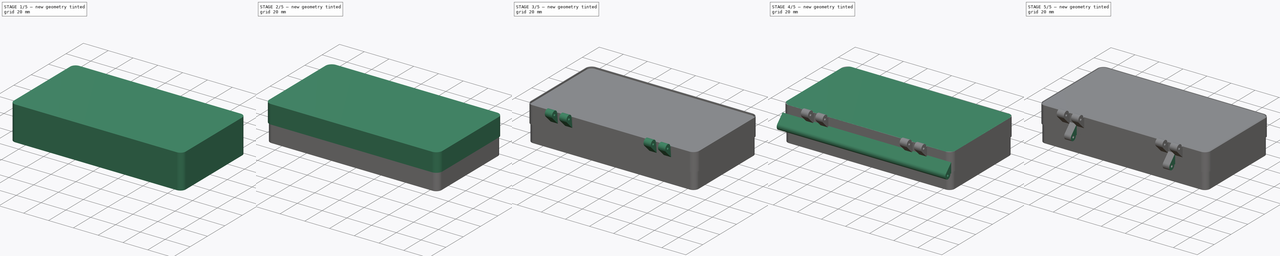
[diagram: build sequence overview — one tinted view per stage of 5, left to right]
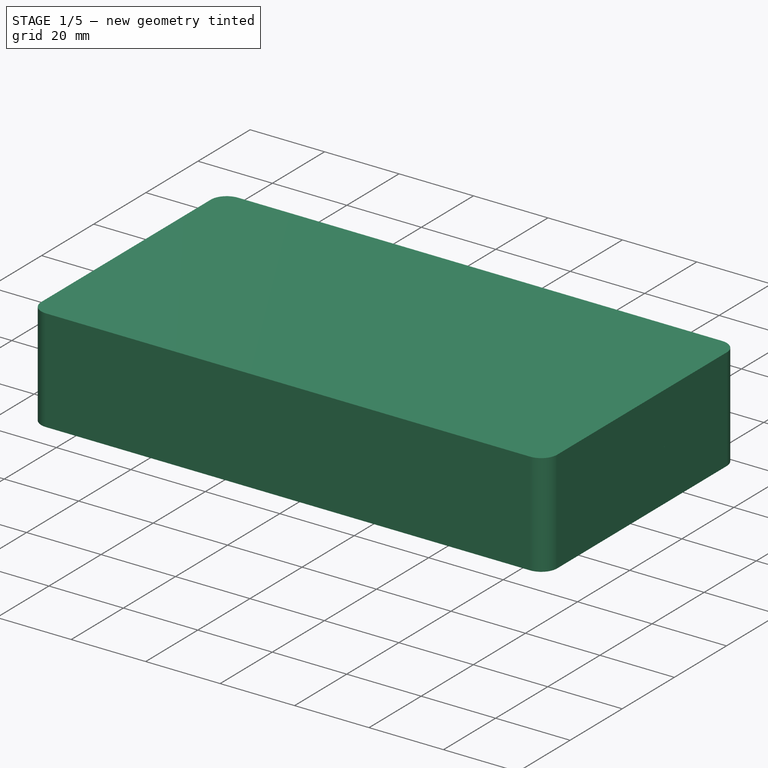
[diagram: stage 1 of 5 — iso view after this stage's code; geometry added in this stage tinted green]
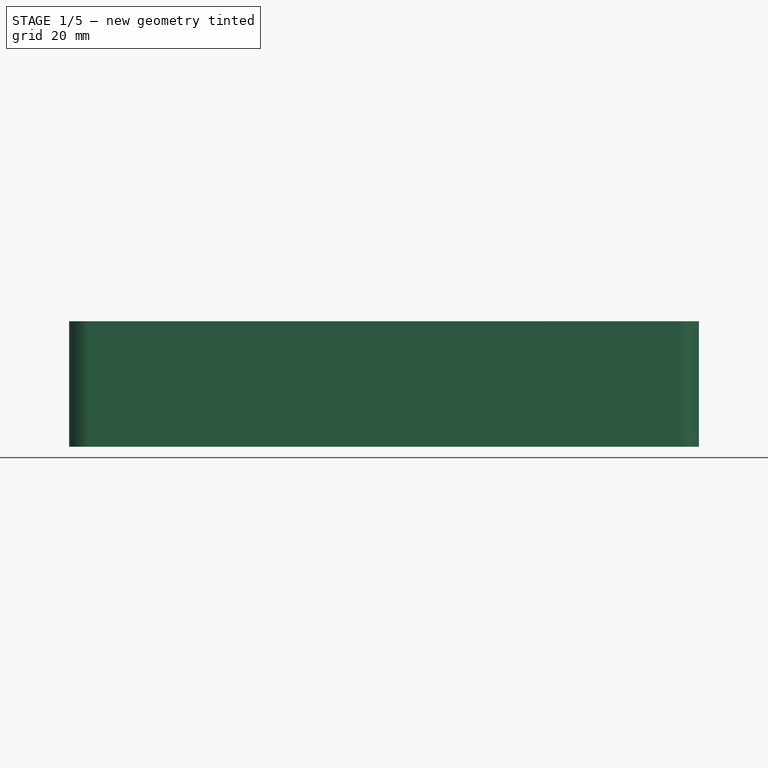
[diagram: stage 1 of 5 — front view after this stage's code; geometry added in this stage tinted green]
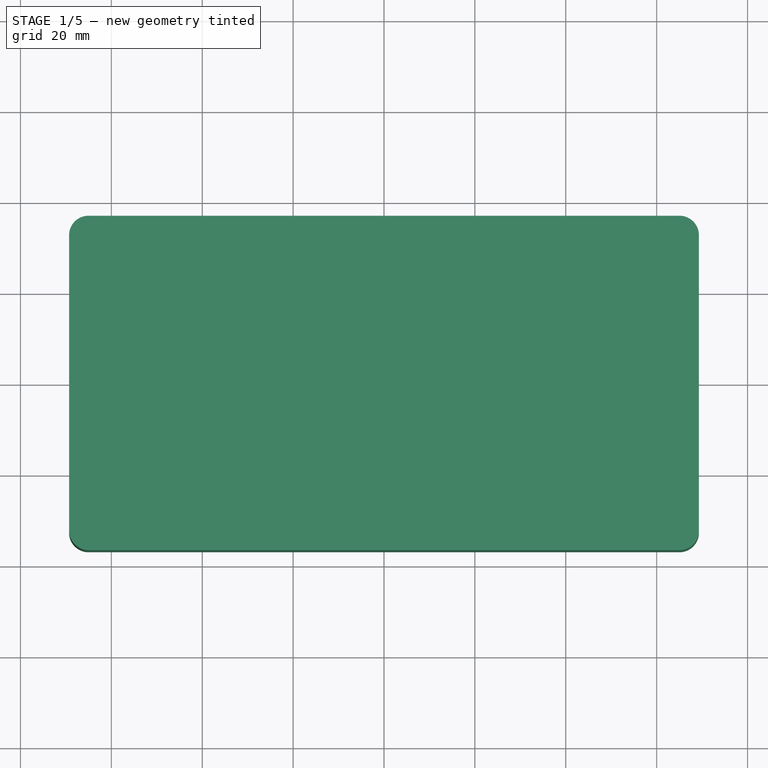
[diagram: stage 1 of 5 — top view after this stage's code; geometry added in this stage tinted green]
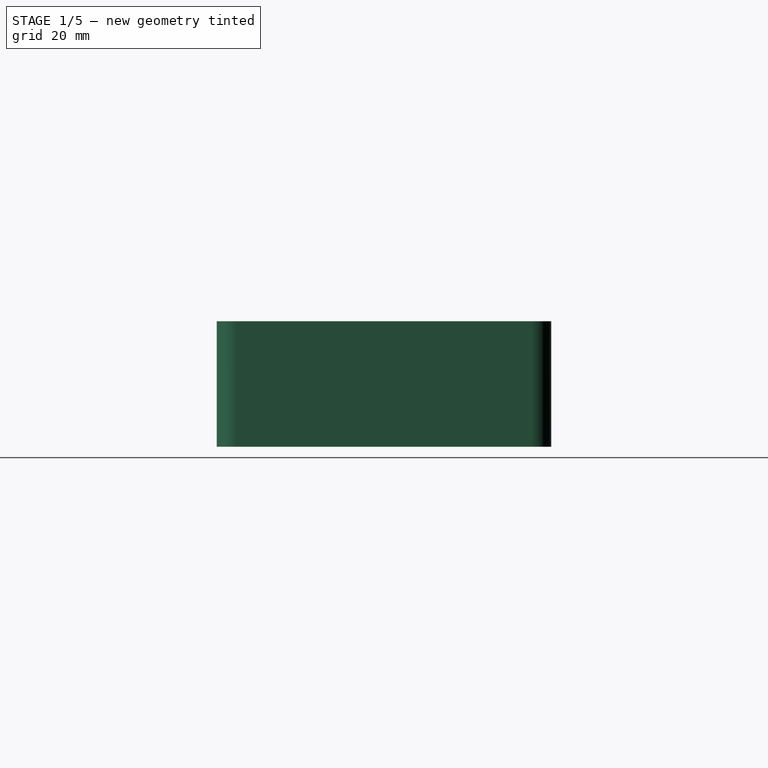
[diagram: stage 1 of 5 — right view after this stage's code; geometry added in this stage tinted green]
FCSTD DOCUMENT  (FreeCAD 1.0R39109 (Git))
Label: case
License: All rights reserved
LicenseURL: https://en.wikipedia.org/wiki/All_rights_reserved
objects: Sketcher::SketchObject×20, PartDesign::Pad×10, PartDesign::Pocket×10, PartDesign::Body×6, App::Part×6, PartDesign::Chamfer×2, Spreadsheet::Sheet×1
note: 112 computed .brp shape members not serialized (recipe doc carries the construction recipe); baked Part::Feature solids carry a one-line shape summary decoded from their .brp

FEATURE [PartDesign::Body] Body003
  AllowCompound = false
  Group = -> [Sketch014,Pad007,Sketch016,Pocket008]
  Origin = -> Origin007
  Tip = -> Pocket008
FEATURE [App::Part] Part003  label="Top insert example"
  Group = -> [Body003]
  Origin = -> Origin006
  Placement = pos=(0,0,-24) rot=(0,0,1;0rad)
FEATURE [Sketcher::SketchObject] Sketch017
  ArcFitTolerance = 1e-06
  AttachmentSupport = -> [XY_Plane009]
  FullyConstrained = true
  MakeInternals = false
  MapMode = 5
  expr: Constraints[20] = Spreadsheet.outside_length - 2 * Spreadsheet.inside_border - 2 * Spreadsheet.insert_margin
  expr: Constraints[21] = Spreadsheet.insert_radius
  expr: Constraints[22] = Spreadsheet.outside_width - 2 * Spreadsheet.inside_border - 2 * Spreadsheet.insert_margin
  sketch-geometry (10):
    g0: LineSegment StartX=-69.3 StartY=32.5 StartZ=0 EndX=-69.3 EndY=-32.5 EndZ=0
    g1: LineSegment StartX=-65 StartY=-36.8 StartZ=0 EndX=65 EndY=-36.8 EndZ=0
    g2: LineSegment StartX=69.3 StartY=-32.5 StartZ=0 EndX=69.3 EndY=32.5 EndZ=0
    g3: LineSegment StartX=65 StartY=36.8 StartZ=0 EndX=-65 EndY=36.8 EndZ=0
    g4: ArcOfCircle CenterX=-65 CenterY=32.5 CenterZ=0 NormalX=0 NormalY=0 NormalZ=1 AngleXU=0 Radius=4.3 StartAngle=1.5708 EndAngle=3.14159
    g5: ArcOfCircle CenterX=-65 CenterY=-32.5 CenterZ=0 NormalX=0 NormalY=0 NormalZ=1 AngleXU=0 Radius=4.3 StartAngle=3.14159 EndAngle=4.71239
    g6: ArcOfCircle CenterX=65 CenterY=-32.5 CenterZ=0 NormalX=0 NormalY=0 NormalZ=1 AngleXU=0 Radius=4.3 StartAngle=4.71239 EndAngle=6.28319
    g7: ArcOfCircle CenterX=65 CenterY=32.5 CenterZ=0 NormalX=0 NormalY=0 NormalZ=1 AngleXU=0 Radius=4.3 StartAngle=2.9901e-11 EndAngle=1.5708
    g8: GeomPoint [constr] X=-69.3 Y=36.8 Z=0
    g9: GeomPoint [constr] X=69.3 Y=-36.8 Z=0
  constraints (23):
    c: Tangent(g0,g4) = -1.5708
    c: Tangent(g0,g5) = -1.5708
    c: Tangent(g1,g5) = -1.5708
    c: Tangent(g1,g6) = -1.5708
    c: Tangent(g2,g6) = -1.5708
    c: Tangent(g2,g7) = -1.5708
    c: Tangent(g3,g7) = -1.5708
    c: Tangent(g3,g4) = -1.5708
    c: Vertical(g0)
    c: Vertical(g2)
    c: Horizontal(g1)
    c: Horizontal(g3)
    c: Equal(g4,g5)
    c: Equal(g5,g6)
    c: Equal(g6,g7)
    c: PointOnObject(g8,g0)
    c: PointOnObject(g8,g3)
    c: PointOnObject(g9,g1)
    c: PointOnObject(g9,g2)
    c: Symmetric(g8,g9,g-1)
    c: DistanceX(g0,g2) = 138.6
    c: Radius(g4) = 4.3
    c: DistanceY(g1,g3) = 73.6
FEATURE [PartDesign::Pad] Pad008
  Direction = (0,0,1)
  Length = 13.8
  Length2 = 10
  Profile = -> Sketch017
  ReferenceAxis = -> Sketch017 [N_Axis]
  Refine = true
  Reversed = true
  Suppressed = false
  Type = 0
  expr: Length = Spreadsheet.bottom_insert_height
FEATURE [Sketcher::SketchObject] Sketch018
  ArcFitTolerance = 1e-06
  AttachmentSupport = -> [Pad008]
  ExternalGeometry = -> [Pad008]
  FullyConstrained = false
  MakeInternals = false
  MapMode = 5
  sketch-geometry (31):
    g0: LineSegment StartX=-65 StartY=-6 StartZ=0 EndX=-65 EndY=-32 EndZ=0
    g1: LineSegment StartX=-63 StartY=-34 StartZ=0 EndX=63 EndY=-34 EndZ=0
    g2: LineSegment StartX=65 StartY=-32 StartZ=0 EndX=65 EndY=-6 EndZ=0
    g3: LineSegment StartX=63 StartY=-4 StartZ=0 EndX=-63 EndY=-4 EndZ=0
    g4: ArcOfCircle CenterX=-63 CenterY=-6 CenterZ=0 NormalX=0 NormalY=0 NormalZ=1 AngleXU=0 Radius=2 StartAngle=1.5708 EndAngle=3.14159
    g5: ArcOfCircle CenterX=-63 CenterY=-32 CenterZ=0 NormalX=0 NormalY=0 NormalZ=1 AngleXU=0 Radius=2 StartAngle=3.14159 EndAngle=4.71239
    g6: ArcOfCircle CenterX=63 CenterY=-32 CenterZ=0 NormalX=0 NormalY=0 NormalZ=1 AngleXU=0 Radius=2 StartAngle=4.71239 EndAngle=6.28319
    g7: ArcOfCircle CenterX=63 CenterY=-6 CenterZ=0 NormalX=0 NormalY=0 NormalZ=1 AngleXU=0 Radius=2 StartAngle=0 EndAngle=1.5708
    g8: GeomPoint [constr] X=-65 Y=-4 Z=0
    g9: GeomPoint [constr] X=65 Y=-34 Z=0
    g10: LineSegment StartX=-64.5 StartY=-1 StartZ=0 EndX=-13.5 EndY=-1 EndZ=0
    g11: LineSegment StartX=-11.5 StartY=1 StartZ=0 EndX=-11.5 EndY=32 EndZ=0
    g12: LineSegment StartX=-13.5 StartY=34 StartZ=0 EndX=-64.5 EndY=34 EndZ=0
    g13: ArcOfCircle CenterX=-64.5 CenterY=32 CenterZ=0 NormalX=0 NormalY=0 NormalZ=1 AngleXU=0 Radius=2 StartAngle=1.5708 EndAngle=3.14159
    g14: ArcOfCircle CenterX=-64.5 CenterY=1 CenterZ=0 NormalX=0 NormalY=0 NormalZ=1 AngleXU=0 Radius=2 StartAngle=3.14159 EndAngle=4.71239
    g15: ArcOfCircle CenterX=-13.5 CenterY=1 CenterZ=0 NormalX=0 NormalY=0 NormalZ=1 AngleXU=0 Radius=2 StartAngle=4.71239 EndAngle=6.28319
    g16: ArcOfCircle CenterX=-13.5 CenterY=32 CenterZ=0 NormalX=0 NormalY=0 NormalZ=1 AngleXU=0 Radius=2 StartAngle=-9e-16 EndAngle=1.5708
    g17: GeomPoint [constr] X=0 Y=0 Z=0
    g18: LineSegment StartX=-66.5 StartY=32 StartZ=0 EndX=-66.5 EndY=1 EndZ=0
    g19: LineSegment StartX=-8.5 StartY=32 StartZ=0 EndX=-8.5 EndY=1 EndZ=0
    g20: LineSegment StartX=-6.5 StartY=-1 StartZ=0 EndX=64.5 EndY=-1 EndZ=0
    g21: LineSegment StartX=66.5 StartY=1 StartZ=0 EndX=66.5 EndY=32 EndZ=0
    g22: LineSegment StartX=64.5 StartY=34 StartZ=0 EndX=-6.5 EndY=34 EndZ=0
    g23: ArcOfCircle CenterX=-6.5 CenterY=32 CenterZ=0 NormalX=0 NormalY=0 NormalZ=1 AngleXU=0 Radius=2 StartAngle=1.5708 EndAngle=3.14159
    g24: ArcOfCircle CenterX=-6.5 CenterY=1 CenterZ=0 NormalX=0 NormalY=0 NormalZ=1 AngleXU=0 Radius=2 StartAngle=3.14159 EndAngle=4.71239
    g25: ArcOfCircle CenterX=64.5 CenterY=1 CenterZ=0 NormalX=0 NormalY=0 NormalZ=1 AngleXU=0 Radius=2 StartAngle=4.71239 EndAngle=6.28319
    g26: ArcOfCircle CenterX=64.5 CenterY=32 CenterZ=0 NormalX=0 NormalY=0 NormalZ=1 AngleXU=0 Radius=2 StartAngle=9e-16 EndAngle=1.5708
    g27: GeomPoint [constr] X=-8.5 Y=34 Z=0
    g28: GeomPoint [constr] X=66.5 Y=0 Z=0
    g29: LineSegment [constr] StartX=20 StartY=34 StartZ=0 EndX=20 EndY=0 EndZ=0
    g30: LineSegment [constr] StartX=20 StartY=0 StartZ=0 EndX=20 EndY=-34 EndZ=0
  constraints (72):
    c: Tangent(g0,g4) = -1.5708
    c: Tangent(g0,g5) = -1.5708
    c: Tangent(g1,g5) = -1.5708
    c: Tangent(g1,g6) = -1.5708
    c: Tangent(g2,g6) = -1.5708
    c: Tangent(g2,g7) = -1.5708
    c: Tangent(g3,g7) = -1.5708
    c: Tangent(g3,g4) = -1.5708
    c: Vertical(g0)
    c: Vertical(g2)
    c: Horizontal(g1)
    c: Horizontal(g3)
    c: Equal(g4,g5)
    c: Equal(g5,g6)
    c: PointOnObject(g8,g0)
    c: PointOnObject(g8,g3)
    c: PointOnObject(g9,g1)
    c: PointOnObject(g9,g2)
    c: Radius(g4) = 2
    c: Tangent(g10,g14) = -1.5708
    c: Tangent(g10,g15) = -1.5708
    c: Tangent(g11,g15) = -1.5708
    c: Tangent(g11,g16) = -1.5708
    c: Tangent(g12,g16) = -1.5708
    c: Tangent(g12,g13) = -1.5708
    c: Vertical(g11)
    c: Horizontal(g10)
    c: Horizontal(g12)
    c: Equal(g13,g14)
    c: Equal(g14,g15)
    c: Equal(g15,g16)
    c: Radius(g14) = 2
    c: Coincident(g17,g-1)
    c: Tangent(g18,g13) = -1.5708
    c: Vertical(g18)
    c: DistanceX(g13,g11) = 55
    c: DistanceY(g10,g12) = 35
    c: Tangent(g19,g23) = -1.5708
    c: Tangent(g19,g24) = -1.5708
    c: Tangent(g20,g24) = -1.5708
    c: Tangent(g20,g25) = -1.5708
    c: Tangent(g21,g25) = -1.5708
    c: Tangent(g21,g26) = -1.5708
    c: Tangent(g22,g26) = -1.5708
    c: Tangent(g22,g23) = -1.5708
    c: Vertical(g19)
    c: Vertical(g21)
    c: Horizontal(g20)
    c: Horizontal(g22)
    c: Equal(g23,g24)
    c: Equal(g24,g25)
    c: Equal(g25,g26)
    c: PointOnObject(g27,g19)
    c: PointOnObject(g27,g22)
    c: Radius(g24) = 2
    c: DistanceX(g19,g21) = 75
    c: DistanceX(g0,g2) = 130
    c: DistanceY(g1,g3) = 30
    c: Tangent(g18,g14) = -1.5708
    c: Distance(g11,g19) = 3
    c: Symmetric(g13,g21,g-2)
    c: Symmetric(g0,g2,g-2)
    c: Horizontal(g10,g20)
    c: Distance(g20,g3) = 3
    c: PointOnObject(g29,g22)
    c: PointOnObject(g29,g-1)
    c: Vertical(g29)
    c: Coincident(g30,g29)
    c: PointOnObject(g30,g1)
    c: Vertical(g30)
    c: Equal(g30,g29)
    c: DistanceX(g17,g29) = 20
FEATURE [PartDesign::Pocket] Pocket009
  BaseFeature = -> Pad008
  Direction = (0,0,-1)
  Length = 11.8
  Length2 = 5
  Profile = -> Sketch018
  ReferenceAxis = -> Sketch018 [N_Axis]
  Refine = true
  Suppressed = false
  Type = 0
  expr: Length = Spreadsheet.bottom_insert_height - 2 mm
FEATURE [PartDesign::Body] Body004
  AllowCompound = false
  Group = -> [Sketch017,Pad008,Sketch018,Pocket009]
  Origin = -> Origin009
  Tip = -> Pocket009
FEATURE [App::Part] Part004  label="Bottom insert Ma Ant D1"
  Group = -> [Body004]
  Origin = -> Origin008
  Placement = pos=(0,0,-34) rot=(0,0,1;0rad)
FEATURE [Sketcher::SketchObject] Sketch019
  ArcFitTolerance = 1e-06
  AttachmentSupport = -> [XY_Plane011]
  FullyConstrained = true
  MakeInternals = false
  MapMode = 5
  expr: Constraints[20] = Spreadsheet.outside_length - 2 * Spreadsheet.inside_border - 2 * Spreadsheet.insert_margin
  expr: Constraints[21] = Spreadsheet.insert_radius
  expr: Constraints[22] = Spreadsheet.outside_width - 2 * Spreadsheet.inside_border - 2 * Spreadsheet.insert_margin
  sketch-geometry (10):
    g0: LineSegment StartX=-69.3 StartY=32.5 StartZ=0 EndX=-69.3 EndY=-32.5 EndZ=0
    g1: LineSegment StartX=-65 StartY=-36.8 StartZ=0 EndX=65 EndY=-36.8 EndZ=0
    g2: LineSegment StartX=69.3 StartY=-32.5 StartZ=0 EndX=69.3 EndY=32.5 EndZ=0
    g3: LineSegment StartX=65 StartY=36.8 StartZ=0 EndX=-65 EndY=36.8 EndZ=0
    g4: ArcOfCircle CenterX=-65 CenterY=32.5 CenterZ=0 NormalX=0 NormalY=0 NormalZ=1 AngleXU=0 Radius=4.3 StartAngle=1.5708 EndAngle=3.14159
    g5: ArcOfCircle CenterX=-65 CenterY=-32.5 CenterZ=0 NormalX=0 NormalY=0 NormalZ=1 AngleXU=0 Radius=4.3 StartAngle=3.14159 EndAngle=4.71239
    g6: ArcOfCircle CenterX=65 CenterY=-32.5 CenterZ=0 NormalX=0 NormalY=0 NormalZ=1 AngleXU=0 Radius=4.3 StartAngle=4.71239 EndAngle=6.28319
    g7: ArcOfCircle CenterX=65 CenterY=32.5 CenterZ=0 NormalX=0 NormalY=0 NormalZ=1 AngleXU=0 Radius=4.3 StartAngle=2.99007e-11 EndAngle=1.5708
    g8: GeomPoint [constr] X=-69.3 Y=36.8 Z=0
    g9: GeomPoint [constr] X=69.3 Y=-36.8 Z=0
  constraints (23):
    c: Tangent(g0,g4) = -1.5708
    c: Tangent(g0,g5) = -1.5708
    c: Tangent(g1,g5) = -1.5708
    c: Tangent(g1,g6) = -1.5708
    c: Tangent(g2,g6) = -1.5708
    c: Tangent(g2,g7) = -1.5708
    c: Tangent(g3,g7) = -1.5708
    c: Tangent(g3,g4) = -1.5708
    c: Vertical(g0)
    c: Vertical(g2)
    c: Horizontal(g1)
    c: Horizontal(g3)
    c: Equal(g4,g5)
    c: Equal(g5,g6)
    c: Equal(g6,g7)
    c: PointOnObject(g8,g0)
    c: PointOnObject(g8,g3)
    c: PointOnObject(g9,g1)
    c: PointOnObject(g9,g2)
    c: Symmetric(g8,g9,g-1)
    c: DistanceX(g0,g2) = 138.6
    c: Radius(g4) = 4.3
    c: DistanceY(g1,g3) = 73.6
FEATURE [PartDesign::Pad] Pad009
  Direction = (0,0,1)
  Length = 13.8
  Length2 = 10
  Profile = -> Sketch019
  ReferenceAxis = -> Sketch019 [N_Axis]
  Refine = true
  Suppressed = false
  Type = 0
  expr: Length = Spreadsheet.top_insert_height
FEATURE [Sketcher::SketchObject] Sketch020
  ArcFitTolerance = 1e-06
  AttachmentSupport = -> [Pad009]
  FullyConstrained = false
  MakeInternals = false
  MapMode = 5
  Placement = pos=(0,0,0) rot=(1,0,0;3.14159rad)
  sketch-geometry (10):
    g0: LineSegment StartX=-27.7408 StartY=7.75884 StartZ=0 EndX=-27.7408 EndY=-7.75883 EndZ=0
    g1: LineSegment StartX=-22.7408 StartY=-12.7588 StartZ=0 EndX=22.7408 EndY=-12.7588 EndZ=0
    g2: LineSegment StartX=27.7408 StartY=-7.75884 StartZ=0 EndX=27.7408 EndY=7.75884 EndZ=0
    g3: LineSegment StartX=22.7408 StartY=12.7588 StartZ=0 EndX=-22.7408 EndY=12.7588 EndZ=0
    g4: ArcOfCircle CenterX=-22.7408 CenterY=7.75883 CenterZ=0 NormalX=0 NormalY=0 NormalZ=1 AngleXU=0 Radius=5 StartAngle=1.5708 EndAngle=3.14159
    g5: ArcOfCircle CenterX=-22.7408 CenterY=-7.75883 CenterZ=0 NormalX=0 NormalY=0 NormalZ=1 AngleXU=0 Radius=5 StartAngle=3.14159 EndAngle=4.71239
    g6: ArcOfCircle CenterX=22.7408 CenterY=-7.75883 CenterZ=0 NormalX=0 NormalY=0 NormalZ=1 AngleXU=0 Radius=5 StartAngle=4.71239 EndAngle=6.28319
    g7: ArcOfCircle CenterX=22.7408 CenterY=7.75884 CenterZ=0 NormalX=0 NormalY=0 NormalZ=1 AngleXU=0 Radius=5 StartAngle=0 EndAngle=1.5708
    g8: GeomPoint [constr] X=-27.7408 Y=12.7588 Z=0
    g9: GeomPoint [constr] X=27.7408 Y=-12.7588 Z=0
  constraints (21):
    c: Tangent(g0,g4) = -1.5708
    c: Tangent(g0,g5) = -1.5708
    c: Tangent(g1,g5) = -1.5708
    c: Tangent(g1,g6) = -1.5708
    c: Tangent(g2,g6) = -1.5708
    c: Tangent(g2,g7) = -1.5708
    c: Tangent(g3,g7) = -1.5708
    c: Tangent(g3,g4) = -1.5708
    c: Vertical(g0)
    c: Vertical(g2)
    c: Horizontal(g1)
    c: Horizontal(g3)
    c: Equal(g4,g5)
    c: Equal(g5,g6)
    c: Equal(g6,g7)
    c: PointOnObject(g8,g0)
    c: PointOnObject(g8,g3)
    c: PointOnObject(g9,g1)
    c: PointOnObject(g9,g2)
    c: Radius(g5) = 5
    c: Symmetric(g4,g6,g-1)
FEATURE [PartDesign::Pocket] Pocket010
  BaseFeature = -> Pad009
  Direction = (0,0,1)
  Length = 11.8
  Length2 = 5
  Profile = -> Sketch020
  ReferenceAxis = -> Sketch020 [N_Axis]
  Refine = true
  Suppressed = false
  Type = 0
  expr: Length = Spreadsheet.top_insert_height - 2 mm
FEATURE [PartDesign::Body] Body005
  AllowCompound = false
  Group = -> [Sketch019,Pad009,Sketch020,Pocket010]
  Origin = -> Origin011
  Tip = -> Pocket010
FEATURE [App::Part] Part005  label="Top insert Ma Ant D1"
  Group = -> [Body005]
  Origin = -> Origin010
  Placement = pos=(0,0,-24) rot=(0,0,1;0rad)
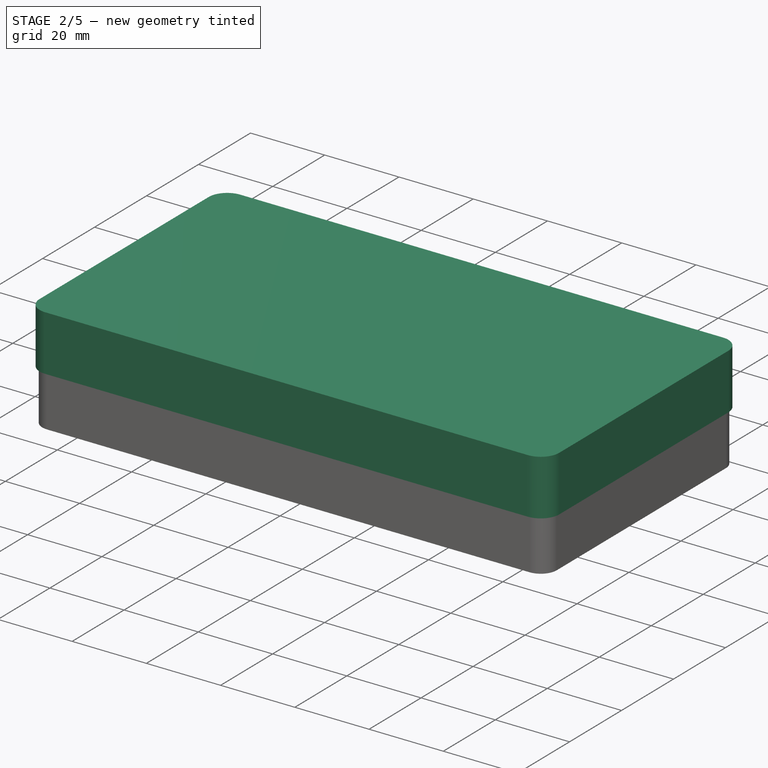
[diagram: stage 2 of 5 — iso view after this stage's code; geometry added in this stage tinted green]
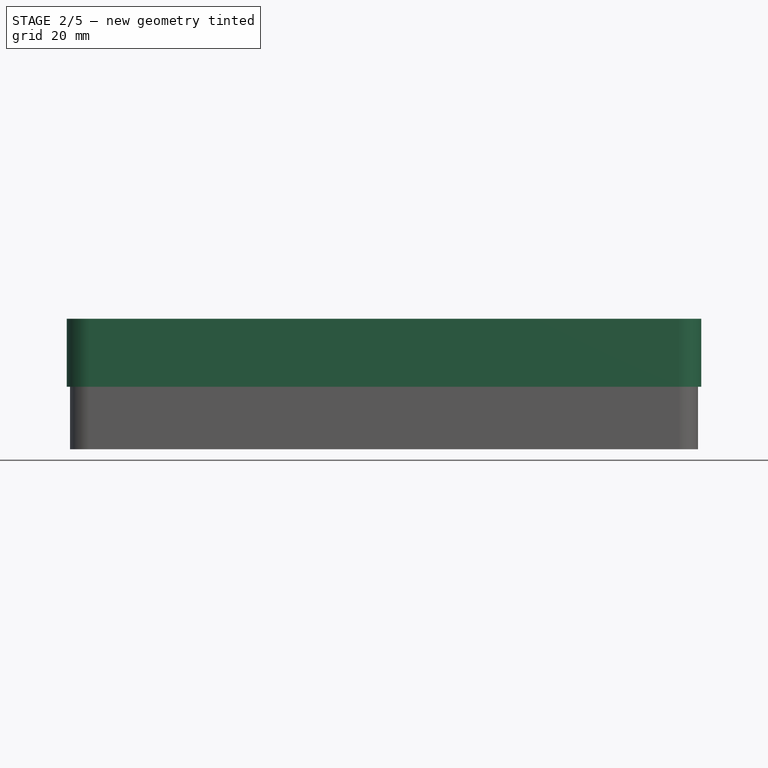
[diagram: stage 2 of 5 — front view after this stage's code; geometry added in this stage tinted green]
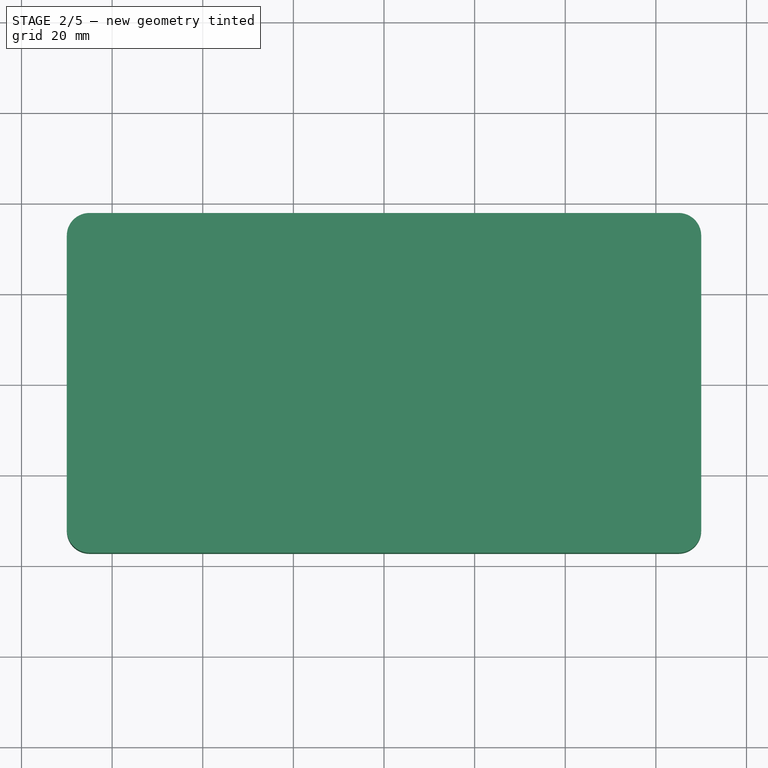
[diagram: stage 2 of 5 — top view after this stage's code; geometry added in this stage tinted green]
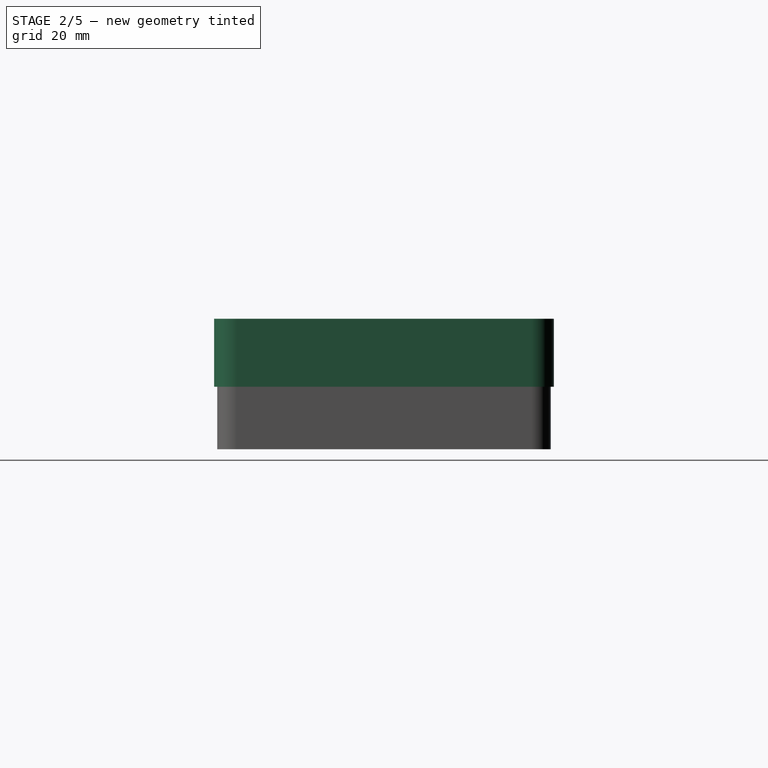
[diagram: stage 2 of 5 — right view after this stage's code; geometry added in this stage tinted green]
FEATURE [Sketcher::SketchObject] Sketch  label="case volume"
  ArcFitTolerance = 1e-06
  AttachmentSupport = -> [XY_Plane001]
  FullyConstrained = true
  MakeInternals = false
  MapMode = 5
  expr: Constraints[19] = Spreadsheet.outside_corner_radius
  expr: Constraints[21] = Spreadsheet.outside_length
  expr: Constraints[22] = Spreadsheet.outside_width
  sketch-geometry (10):
    g0: LineSegment StartX=-70 StartY=32.5 StartZ=0 EndX=-70 EndY=-32.5 EndZ=0
    g1: LineSegment StartX=-65 StartY=-37.5 StartZ=0 EndX=65 EndY=-37.5 EndZ=0
    g2: LineSegment StartX=70 StartY=-32.5 StartZ=0 EndX=70 EndY=32.5 EndZ=0
    g3: LineSegment StartX=65 StartY=37.5 StartZ=0 EndX=-65 EndY=37.5 EndZ=0
    g4: ArcOfCircle CenterX=-65 CenterY=32.5 CenterZ=0 NormalX=0 NormalY=0 NormalZ=1 AngleXU=0 Radius=5 StartAngle=1.5708 EndAngle=3.14159
    g5: ArcOfCircle CenterX=-65 CenterY=-32.5 CenterZ=0 NormalX=0 NormalY=0 NormalZ=1 AngleXU=0 Radius=5 StartAngle=3.14159 EndAngle=4.71239
    g6: ArcOfCircle CenterX=65 CenterY=-32.5 CenterZ=0 NormalX=0 NormalY=0 NormalZ=1 AngleXU=0 Radius=5 StartAngle=4.71239 EndAngle=6.28319
    g7: ArcOfCircle CenterX=65 CenterY=32.5 CenterZ=0 NormalX=0 NormalY=0 NormalZ=1 AngleXU=0 Radius=5 StartAngle=0 EndAngle=1.5708
    g8: GeomPoint [constr] X=-70 Y=37.5 Z=0
    g9: GeomPoint [constr] X=70 Y=-37.5 Z=0
  constraints (23):
    c: Tangent(g0,g4) = -1.5708
    c: Tangent(g0,g5) = -1.5708
    c: Tangent(g1,g5) = -1.5708
    c: Tangent(g1,g6) = -1.5708
    c: Tangent(g2,g6) = -1.5708
    c: Tangent(g2,g7) = -1.5708
    c: Tangent(g3,g7) = -1.5708
    c: Tangent(g3,g4) = -1.5708
    c: Vertical(g0)
    c: Vertical(g2)
    c: Horizontal(g1)
    c: Horizontal(g3)
    c: Equal(g4,g5)
    c: Equal(g5,g6)
    c: Equal(g6,g7)
    c: PointOnObject(g8,g0)
    c: PointOnObject(g8,g3)
    c: PointOnObject(g9,g1)
    c: PointOnObject(g9,g2)
    c: Radius(g5) = 5
    c: Symmetric(g8,g9,g-1)
    c: DistanceX(g8,g2) = 140
    c: DistanceY(g1,g8) = 75
FEATURE [PartDesign::Pad] Pad
  Direction = (0,0,1)
  Length = 15
  Length2 = 10
  Profile = -> Sketch
  ReferenceAxis = -> Sketch [N_Axis]
  Refine = true
  Suppressed = false
  Type = 0
  expr: Length = Spreadsheet.bottom_height
FEATURE [PartDesign::Body] Body
  AllowCompound = false
  Group = -> [Sketch,Pad,Sketch001,Pocket,Sketch002,Pad001,Sketch008,Pocket004,Sketch009,Pad004,Sketch010,Pocket005,Chamfer001]
  Origin = -> Origin001
  Tip = -> Chamfer001
FEATURE [App::Part] Part  label="Bottom shell"
  Group = -> [Body]
  Origin = -> Origin
  Placement = pos=(0,0,-80) rot=(0,0,1;0rad)
FEATURE [Sketcher::SketchObject] Sketch013
  ArcFitTolerance = 1e-06
  AttachmentSupport = -> [XY_Plane005]
  FullyConstrained = true
  MakeInternals = false
  MapMode = 5
  expr: Constraints[20] = Spreadsheet.outside_length - 2 * Spreadsheet.inside_border - 2 * Spreadsheet.insert_margin
  expr: Constraints[21] = Spreadsheet.insert_radius
  expr: Constraints[22] = Spreadsheet.outside_width - 2 * Spreadsheet.inside_border - 2 * Spreadsheet.insert_margin
  sketch-geometry (10):
    g0: LineSegment StartX=-69.3 StartY=32.5 StartZ=0 EndX=-69.3 EndY=-32.5 EndZ=0
    g1: LineSegment StartX=-65 StartY=-36.8 StartZ=0 EndX=65 EndY=-36.8 EndZ=0
    g2: LineSegment StartX=69.3 StartY=-32.5 StartZ=0 EndX=69.3 EndY=32.5 EndZ=0
    g3: LineSegment StartX=65 StartY=36.8 StartZ=0 EndX=-65 EndY=36.8 EndZ=0
    g4: ArcOfCircle CenterX=-65 CenterY=32.5 CenterZ=0 NormalX=0 NormalY=0 NormalZ=1 AngleXU=0 Radius=4.3 StartAngle=1.5708 EndAngle=3.14159
    g5: ArcOfCircle CenterX=-65 CenterY=-32.5 CenterZ=0 NormalX=0 NormalY=0 NormalZ=1 AngleXU=0 Radius=4.3 StartAngle=3.14159 EndAngle=4.71239
    g6: ArcOfCircle CenterX=65 CenterY=-32.5 CenterZ=0 NormalX=0 NormalY=0 NormalZ=1 AngleXU=0 Radius=4.3 StartAngle=4.71239 EndAngle=6.28319
    g7: ArcOfCircle CenterX=65 CenterY=32.5 CenterZ=0 NormalX=0 NormalY=0 NormalZ=1 AngleXU=0 Radius=4.3 StartAngle=2.99006e-11 EndAngle=1.5708
    g8: GeomPoint [constr] X=-69.3 Y=36.8 Z=0
    g9: GeomPoint [constr] X=69.3 Y=-36.8 Z=0
  constraints (23):
    c: Tangent(g0,g4) = -1.5708
    c: Tangent(g0,g5) = -1.5708
    c: Tangent(g1,g5) = -1.5708
    c: Tangent(g1,g6) = -1.5708
    c: Tangent(g2,g6) = -1.5708
    c: Tangent(g2,g7) = -1.5708
    c: Tangent(g3,g7) = -1.5708
    c: Tangent(g3,g4) = -1.5708
    c: Vertical(g0)
    c: Vertical(g2)
    c: Horizontal(g1)
    c: Horizontal(g3)
    c: Equal(g4,g5)
    c: Equal(g5,g6)
    c: Equal(g6,g7)
    c: PointOnObject(g8,g0)
    c: PointOnObject(g8,g3)
    c: PointOnObject(g9,g1)
    c: PointOnObject(g9,g2)
    c: Symmetric(g8,g9,g-1)
    c: DistanceX(g0,g2) = 138.6
    c: Radius(g4) = 4.3
    c: DistanceY(g1,g3) = 73.6
FEATURE [PartDesign::Pad] Pad006
  Direction = (0,0,1)
  Length = 13.8
  Length2 = 10
  Profile = -> Sketch013
  ReferenceAxis = -> Sketch013 [N_Axis]
  Refine = true
  Reversed = true
  Suppressed = false
  Type = 0
  expr: Length = Spreadsheet.bottom_insert_height
FEATURE [Sketcher::SketchObject] Sketch014
  ArcFitTolerance = 1e-06
  AttachmentSupport = -> [XY_Plane007]
  FullyConstrained = true
  MakeInternals = false
  MapMode = 5
  expr: Constraints[20] = Spreadsheet.outside_length - 2 * Spreadsheet.inside_border - 2 * Spreadsheet.insert_margin
  expr: Constraints[21] = Spreadsheet.insert_radius
  expr: Constraints[22] = Spreadsheet.outside_width - 2 * Spreadsheet.inside_border - 2 * Spreadsheet.insert_margin
  sketch-geometry (10):
    g0: LineSegment StartX=-69.3 StartY=32.5 StartZ=0 EndX=-69.3 EndY=-32.5 EndZ=0
    g1: LineSegment StartX=-65 StartY=-36.8 StartZ=0 EndX=65 EndY=-36.8 EndZ=0
    g2: LineSegment StartX=69.3 StartY=-32.5 StartZ=0 EndX=69.3 EndY=32.5 EndZ=0
    g3: LineSegment StartX=65 StartY=36.8 StartZ=0 EndX=-65 EndY=36.8 EndZ=0
    g4: ArcOfCircle CenterX=-65 CenterY=32.5 CenterZ=0 NormalX=0 NormalY=0 NormalZ=1 AngleXU=0 Radius=4.3 StartAngle=1.5708 EndAngle=3.14159
    g5: ArcOfCircle CenterX=-65 CenterY=-32.5 CenterZ=0 NormalX=0 NormalY=0 NormalZ=1 AngleXU=0 Radius=4.3 StartAngle=3.14159 EndAngle=4.71239
    g6: ArcOfCircle CenterX=65 CenterY=-32.5 CenterZ=0 NormalX=0 NormalY=0 NormalZ=1 AngleXU=0 Radius=4.3 StartAngle=4.71239 EndAngle=6.28319
    g7: ArcOfCircle CenterX=65 CenterY=32.5 CenterZ=0 NormalX=0 NormalY=0 NormalZ=1 AngleXU=0 Radius=4.3 StartAngle=2.98997e-11 EndAngle=1.5708
    g8: GeomPoint [constr] X=-69.3 Y=36.8 Z=0
    g9: GeomPoint [constr] X=69.3 Y=-36.8 Z=0
  constraints (23):
    c: Tangent(g0,g4) = -1.5708
    c: Tangent(g0,g5) = -1.5708
    c: Tangent(g1,g5) = -1.5708
    c: Tangent(g1,g6) = -1.5708
    c: Tangent(g2,g6) = -1.5708
    c: Tangent(g2,g7) = -1.5708
    c: Tangent(g3,g7) = -1.5708
    c: Tangent(g3,g4) = -1.5708
    c: Vertical(g0)
    c: Vertical(g2)
    c: Horizontal(g1)
    c: Horizontal(g3)
    c: Equal(g4,g5)
    c: Equal(g5,g6)
    c: Equal(g6,g7)
    c: PointOnObject(g8,g0)
    c: PointOnObject(g8,g3)
    c: PointOnObject(g9,g1)
    c: PointOnObject(g9,g2)
    c: Symmetric(g8,g9,g-1)
    c: DistanceX(g0,g2) = 138.6
    c: Radius(g4) = 4.3
    c: DistanceY(g1,g3) = 73.6
FEATURE [PartDesign::Pad] Pad007
  Direction = (0,0,1)
  Length = 13.8
  Length2 = 10
  Profile = -> Sketch014
  ReferenceAxis = -> Sketch014 [N_Axis]
  Refine = true
  Suppressed = false
  Type = 0
  expr: Length = Spreadsheet.top_insert_height
FEATURE [Sketcher::SketchObject] Sketch015
  ArcFitTolerance = 1e-06
  AttachmentSupport = -> [Pad006]
  ExternalGeometry = -> [Pad006]
  FullyConstrained = false
  MakeInternals = false
  MapMode = 5
  sketch-geometry (55):
    g0: LineSegment StartX=-27.9672 StartY=-5.55826 StartZ=0 EndX=-27.9672 EndY=-9.23636 EndZ=0
    g1: LineSegment StartX=-24.9672 StartY=-12.2364 StartZ=0 EndX=24.9672 EndY=-12.2364 EndZ=0
    g2: LineSegment StartX=27.9672 StartY=-9.23636 StartZ=0 EndX=27.9672 EndY=-5.55826 EndZ=0
    g3: LineSegment StartX=24.9672 StartY=-2.55826 StartZ=0 EndX=-24.9672 EndY=-2.55826 EndZ=0
    g4: ArcOfCircle CenterX=-24.9672 CenterY=-5.55826 CenterZ=0 NormalX=0 NormalY=0 NormalZ=1 AngleXU=0 Radius=3 StartAngle=1.5708 EndAngle=3.14159
    g5: ArcOfCircle CenterX=-24.9672 CenterY=-9.23636 CenterZ=0 NormalX=0 NormalY=0 NormalZ=1 AngleXU=0 Radius=3 StartAngle=3.14159 EndAngle=4.71239
    g6: ArcOfCircle CenterX=24.9672 CenterY=-9.23636 CenterZ=0 NormalX=0 NormalY=0 NormalZ=1 AngleXU=0 Radius=3 StartAngle=4.71239 EndAngle=6.28319
    g7: ArcOfCircle CenterX=24.9672 CenterY=-5.55826 CenterZ=0 NormalX=0 NormalY=0 NormalZ=1 AngleXU=0 Radius=3 StartAngle=0 EndAngle=1.5708
    g8: GeomPoint [constr] X=-27.9672 Y=-2.55826 Z=0
    g9: GeomPoint [constr] X=27.9672 Y=-12.2364 Z=0
    g10: LineSegment StartX=-24.9672 StartY=0 StartZ=0 EndX=-19.9672 EndY=0 EndZ=0
    g11: LineSegment StartX=-16.9672 StartY=3 StartZ=0 EndX=-16.9672 EndY=9.70752 EndZ=0
    g12: LineSegment StartX=-19.9672 StartY=12.7075 StartZ=0 EndX=-24.9672 EndY=12.7075 EndZ=0
    g13: ArcOfCircle CenterX=-24.9672 CenterY=9.70752 CenterZ=0 NormalX=0 NormalY=0 NormalZ=1 AngleXU=0 Radius=3 StartAngle=1.5708 EndAngle=3.14159
    g14: ArcOfCircle CenterX=-24.9672 CenterY=3 CenterZ=0 NormalX=0 NormalY=0 NormalZ=1 AngleXU=0 Radius=3 StartAngle=3.14159 EndAngle=4.71239
    g15: ArcOfCircle CenterX=-19.9672 CenterY=3 CenterZ=0 NormalX=0 NormalY=0 NormalZ=1 AngleXU=0 Radius=3 StartAngle=4.71239 EndAngle=6.28319
    g16: ArcOfCircle CenterX=-19.9672 CenterY=9.70752 CenterZ=0 NormalX=0 NormalY=0 NormalZ=1 AngleXU=0 Radius=3 StartAngle=0 EndAngle=1.5708
    g17: GeomPoint [constr] X=-26.8503 Y=12.7075 Z=0
    g18: GeomPoint [constr] X=-16.9672 Y=0 Z=0
    g19: LineSegment StartX=-12.9891 StartY=9.70752 StartZ=0 EndX=-12.9891 EndY=3 EndZ=0
    g20: LineSegment StartX=-9.98905 StartY=0 StartZ=0 EndX=-4.98905 EndY=0 EndZ=0
    g21: LineSegment StartX=-1.98905 StartY=3 StartZ=0 EndX=-1.98905 EndY=9.70752 EndZ=0
    g22: LineSegment StartX=-4.98905 StartY=12.7075 StartZ=0 EndX=-9.98905 EndY=12.7075 EndZ=0
    g23: ArcOfCircle CenterX=-9.98905 CenterY=9.70752 CenterZ=0 NormalX=0 NormalY=0 NormalZ=1 AngleXU=0 Radius=3 StartAngle=1.5708 EndAngle=3.14159
    g24: ArcOfCircle CenterX=-9.98905 CenterY=3 CenterZ=0 NormalX=0 NormalY=0 NormalZ=1 AngleXU=0 Radius=3 StartAngle=3.14159 EndAngle=4.71239
    g25: ArcOfCircle CenterX=-4.98905 CenterY=3 CenterZ=0 NormalX=0 NormalY=0 NormalZ=1 AngleXU=0 Radius=3 StartAngle=4.71239 EndAngle=6.28319
    g26: ArcOfCircle CenterX=-4.98905 CenterY=9.70752 CenterZ=0 NormalX=0 NormalY=0 NormalZ=1 AngleXU=0 Radius=3 StartAngle=1e-16 EndAngle=1.5708
    g27: GeomPoint [constr] X=-12.9891 Y=12.7075 Z=0
    g28: GeomPoint [constr] X=0 Y=0 Z=0
    g29: LineSegment StartX=1.98905 StartY=9.70752 StartZ=0 EndX=1.98905 EndY=3 EndZ=0
    g30: LineSegment StartX=4.98905 StartY=0 StartZ=0 EndX=9.98905 EndY=0 EndZ=0
    g31: LineSegment StartX=12.9891 StartY=3 StartZ=0 EndX=12.9891 EndY=9.70752 EndZ=0
    g32: LineSegment StartX=9.98905 StartY=12.7075 StartZ=0 EndX=4.98905 EndY=12.7075 EndZ=0
    g33: ArcOfCircle CenterX=4.98905 CenterY=9.70752 CenterZ=0 NormalX=0 NormalY=0 NormalZ=1 AngleXU=0 Radius=3 StartAngle=1.5708 EndAngle=3.14159
    g34: ArcOfCircle CenterX=4.98905 CenterY=3 CenterZ=0 NormalX=0 NormalY=0 NormalZ=1 AngleXU=0 Radius=3 StartAngle=3.14159 EndAngle=4.71239
    g35: ArcOfCircle CenterX=9.98905 CenterY=3 CenterZ=0 NormalX=0 NormalY=0 NormalZ=1 AngleXU=0 Radius=3 StartAngle=4.71239 EndAngle=6.28319
    g36: ArcOfCircle CenterX=9.98905 CenterY=9.70752 CenterZ=0 NormalX=0 NormalY=0 NormalZ=1 AngleXU=0 Radius=3 StartAngle=1e-16 EndAngle=1.5708
    g37: GeomPoint [constr] X=1.98905 Y=12.7075 Z=0
    g38: GeomPoint [constr] X=12.9891 Y=0 Z=0
    g39: LineSegment StartX=16.9672 StartY=9.70752 StartZ=0 EndX=16.9672 EndY=3 EndZ=0
    g40: LineSegment StartX=19.9672 StartY=0 StartZ=0 EndX=24.9672 EndY=0 EndZ=0
    g41: LineSegment StartX=27.9672 StartY=3 StartZ=0 EndX=27.9672 EndY=9.70752 EndZ=0
    g42: LineSegment StartX=24.9672 StartY=12.7075 StartZ=0 EndX=19.9672 EndY=12.7075 EndZ=0
    g43: ArcOfCircle CenterX=19.9672 CenterY=9.70752 CenterZ=0 NormalX=0 NormalY=0 NormalZ=1 AngleXU=0 Radius=3 StartAngle=1.5708 EndAngle=3.14159
    g44: ArcOfCircle CenterX=19.9672 CenterY=3 CenterZ=0 NormalX=0 NormalY=0 NormalZ=1 AngleXU=0 Radius=3 StartAngle=3.14159 EndAngle=4.71239
    g45: ArcOfCircle CenterX=24.9672 CenterY=3 CenterZ=0 NormalX=0 NormalY=0 NormalZ=1 AngleXU=0 Radius=3 StartAngle=4.71239 EndAngle=6.28319
    g46: ArcOfCircle CenterX=24.9672 CenterY=9.70752 CenterZ=0 NormalX=0 NormalY=0 NormalZ=1 AngleXU=0 Radius=3 StartAngle=0 EndAngle=1.5708
    g47: GeomPoint [constr] X=16.9672 Y=12.7075 Z=0
    g48: GeomPoint [constr] X=27.9672 Y=0 Z=0
    g49: LineSegment [constr] StartX=-16.9672 StartY=9.70752 StartZ=0 EndX=-12.9891 EndY=9.70752 EndZ=0
    g50: LineSegment [constr] StartX=-1.98905 StartY=9.70752 StartZ=0 EndX=1.98905 EndY=9.70752 EndZ=0
    g51: LineSegment [constr] StartX=12.9891 StartY=9.70752 StartZ=0 EndX=16.9672 EndY=9.70752 EndZ=0
    g52: LineSegment StartX=-27.9672 StartY=9.70752 StartZ=0 EndX=-27.9672 EndY=3 EndZ=0
    g53: LineSegment [constr] StartX=-27.9672 StartY=3 StartZ=0 EndX=-27.9672 EndY=-5.55826 EndZ=0
    g54: LineSegment [constr] StartX=27.9672 StartY=3 StartZ=0 EndX=27.9672 EndY=-5.55826 EndZ=0
  constraints (123):
    c: Tangent(g0,g4) = -1.5708
    c: Tangent(g0,g5) = -1.5708
    c: Tangent(g1,g5) = -1.5708
    c: Tangent(g1,g6) = -1.5708
    c: Tangent(g2,g6) = -1.5708
    c: Tangent(g2,g7) = -1.5708
    c: Tangent(g3,g7) = -1.5708
    c: Tangent(g3,g4) = -1.5708
    c: Vertical(g0)
    c: Vertical(g2)
    c: Horizontal(g1)
    c: Horizontal(g3)
    c: Equal(g4,g5)
    c: Equal(g5,g6)
    c: Equal(g6,g7)
    c: PointOnObject(g8,g0)
    c: PointOnObject(g8,g3)
    c: PointOnObject(g9,g1)
    c: PointOnObject(g9,g2)
    c: Radius(g4) = 3
    c: Tangent(g10,g14) = -1.5708
    c: Tangent(g10,g15) = -1.5708
    c: Tangent(g11,g15) = -1.5708
    c: Tangent(g11,g16) = -1.5708
    c: Tangent(g12,g16) = -1.5708
    c: Tangent(g12,g13) = -1.5708
    c: Vertical(g11)
    c: Horizontal(g10)
    c: Horizontal(g12)
    c: Equal(g13,g14)
    c: Equal(g14,g15)
    c: Equal(g15,g16)
    c: PointOnObject(g17,g12)
    c: PointOnObject(g18,g10)
    c: PointOnObject(g18,g11)
    c: Radius(g14) = 3
    c: PointOnObject(g18,g-1)
    c: Tangent(g19,g23) = -1.5708
    c: Tangent(g19,g24) = -1.5708
    c: Tangent(g20,g24) = -1.5708
    c: Tangent(g20,g25) = -1.5708
    c: Tangent(g21,g25) = -1.5708
    c: Tangent(g21,g26) = -1.5708
    c: Tangent(g22,g26) = -1.5708
    c: Tangent(g22,g23) = -1.5708
    c: Vertical(g19)
    c: Vertical(g21)
    c: Horizontal(g20)
    c: Horizontal(g22)
    c: Equal(g23,g24)
    c: Equal(g24,g25)
    c: PointOnObject(g27,g19)
    c: PointOnObject(g27,g22)
    c: Radius(g24) = 3
    c: Coincident(g28,g-1)
    c: Tangent(g29,g33) = -1.5708
    c: Tangent(g29,g34) = -1.5708
    c: Tangent(g30,g34) = -1.5708
    c: Tangent(g30,g35) = -1.5708
    c: Tangent(g31,g35) = -1.5708
    c: Tangent(g31,g36) = -1.5708
    c: Tangent(g32,g36) = -1.5708
    c: Tangent(g32,g33) = -1.5708
    c: Vertical(g29)
    c: Vertical(g31)
    c: Horizontal(g30)
    c: Horizontal(g32)
    c: Equal(g33,g34)
    c: Equal(g34,g35)
    c: Equal(g35,g36)
    c: PointOnObject(g37,g29)
    c: PointOnObject(g37,g32)
    c: PointOnObject(g38,g30)
    c: PointOnObject(g38,g31)
    c: Radius(g34) = 3
    c: PointOnObject(g38,g-1)
    c: Tangent(g39,g43) = -1.5708
    c: Tangent(g39,g44) = -1.5708
    c: Tangent(g40,g44) = -1.5708
    c: Tangent(g40,g45) = -1.5708
    c: Tangent(g41,g45) = -1.5708
    c: Tangent(g41,g46) = -1.5708
    c: Tangent(g42,g46) = -1.5708
    c: Tangent(g42,g43) = -1.5708
    c: Vertical(g39)
    c: Vertical(g41)
    c: Horizontal(g40)
    c: Horizontal(g42)
    c: Equal(g43,g44)
    c: Equal(g44,g45)
    c: Equal(g45,g46)
    c: PointOnObject(g47,g39)
    c: PointOnObject(g47,g42)
    c: PointOnObject(g48,g40)
    c: PointOnObject(g48,g41)
    c: Radius(g44) = 3
    c: PointOnObject(g48,g-1)
    c: Equal(g12,g22)
    c: Equal(g22,g32)
    c: Equal(g42,g32)
    c: DistanceX(g32,g32) = 5
    c: Equal(g19,g29)
    c: Equal(g29,g39)
    c: Equal(g26,g25)
    c: Coincident(g49,g11)
    c: Coincident(g49,g19)
    c: Coincident(g50,g21)
    c: Coincident(g50,g29)
    c: Coincident(g51,g31)
    c: Coincident(g51,g39)
    c: Equal(g49,g50)
    c: Equal(g50,g51)
    c: Tangent(g52,g13) = -1.5708
    c: Coincident(g52,g14)
    c: Vertical(g52)
    c: Coincident(g53,g14)
    c: Coincident(g53,g0)
    c: Tangent(g53,g4)
    c: Coincident(g54,g41)
    c: Coincident(g54,g2)
    c: Vertical(g54)
    c: Symmetric(g21,g29,g-2)
    c: Horizontal(g49)
FEATURE [PartDesign::Pocket] Pocket007
  BaseFeature = -> Pad006
  Direction = (0,0,-1)
  Length = 13
  Length2 = 5
  Profile = -> Sketch015
  ReferenceAxis = -> Sketch015 [N_Axis]
  Refine = true
  Suppressed = false
  Type = 0
  expr: Length = Spreadsheet.bottom_height - 2 mm
FEATURE [PartDesign::Body] Body002
  AllowCompound = false
  Group = -> [Sketch013,Pad006,Sketch015,Pocket007]
  Origin = -> Origin005
  Tip = -> Pocket007
FEATURE [App::Part] Part002  label="Bottom insert example"
  Group = -> [Body002]
  Origin = -> Origin004
  Placement = pos=(0,0,-34) rot=(0,0,1;0rad)
FEATURE [Sketcher::SketchObject] Sketch016
  ArcFitTolerance = 1e-06
  AttachmentSupport = -> [Pad007]
  FullyConstrained = false
  MakeInternals = false
  MapMode = 5
  Placement = pos=(0,0,0) rot=(1,0,0;3.14159rad)
  sketch-geometry (10):
    g0: LineSegment StartX=-27.7408 StartY=7.75884 StartZ=0 EndX=-27.7408 EndY=-7.75883 EndZ=0
    g1: LineSegment StartX=-22.7408 StartY=-12.7588 StartZ=0 EndX=22.7408 EndY=-12.7588 EndZ=0
    g2: LineSegment StartX=27.7408 StartY=-7.75884 StartZ=0 EndX=27.7408 EndY=7.75884 EndZ=0
    g3: LineSegment StartX=22.7408 StartY=12.7588 StartZ=0 EndX=-22.7408 EndY=12.7588 EndZ=0
    g4: ArcOfCircle CenterX=-22.7408 CenterY=7.75883 CenterZ=0 NormalX=0 NormalY=0 NormalZ=1 AngleXU=0 Radius=5 StartAngle=1.5708 EndAngle=3.14159
    g5: ArcOfCircle CenterX=-22.7408 CenterY=-7.75883 CenterZ=0 NormalX=0 NormalY=0 NormalZ=1 AngleXU=0 Radius=5 StartAngle=3.14159 EndAngle=4.71239
    g6: ArcOfCircle CenterX=22.7408 CenterY=-7.75883 CenterZ=0 NormalX=0 NormalY=0 NormalZ=1 AngleXU=0 Radius=5 StartAngle=4.71239 EndAngle=6.28319
    g7: ArcOfCircle CenterX=22.7408 CenterY=7.75884 CenterZ=0 NormalX=0 NormalY=0 NormalZ=1 AngleXU=0 Radius=5 StartAngle=0 EndAngle=1.5708
    g8: GeomPoint [constr] X=-27.7408 Y=12.7588 Z=0
    g9: GeomPoint [constr] X=27.7408 Y=-12.7588 Z=0
  constraints (21):
    c: Tangent(g0,g4) = -1.5708
    c: Tangent(g0,g5) = -1.5708
    c: Tangent(g1,g5) = -1.5708
    c: Tangent(g1,g6) = -1.5708
    c: Tangent(g2,g6) = -1.5708
    c: Tangent(g2,g7) = -1.5708
    c: Tangent(g3,g7) = -1.5708
    c: Tangent(g3,g4) = -1.5708
    c: Vertical(g0)
    c: Vertical(g2)
    c: Horizontal(g1)
    c: Horizontal(g3)
    c: Equal(g4,g5)
    c: Equal(g5,g6)
    c: Equal(g6,g7)
    c: PointOnObject(g8,g0)
    c: PointOnObject(g8,g3)
    c: PointOnObject(g9,g1)
    c: PointOnObject(g9,g2)
    c: Radius(g5) = 5
    c: Symmetric(g4,g6,g-1)
FEATURE [PartDesign::Pocket] Pocket008
  BaseFeature = -> Pad007
  Direction = (0,0,1)
  Length = 13
  Length2 = 5
  Profile = -> Sketch016
  ReferenceAxis = -> Sketch016 [N_Axis]
  Refine = true
  Suppressed = false
  Type = 0
  expr: Length = Spreadsheet.top_height - 2 mm
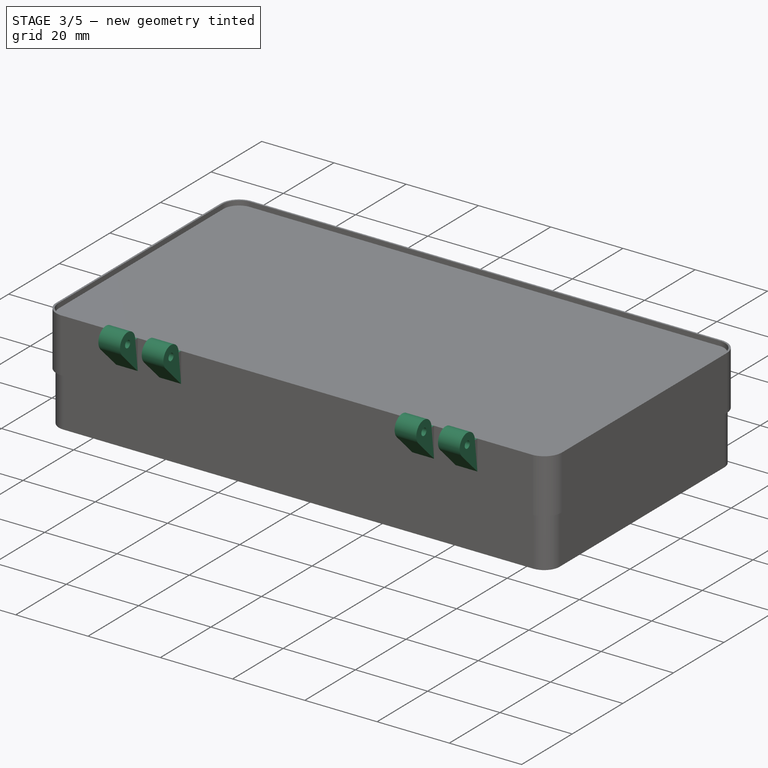
[diagram: stage 3 of 5 — iso view after this stage's code; geometry added in this stage tinted green]
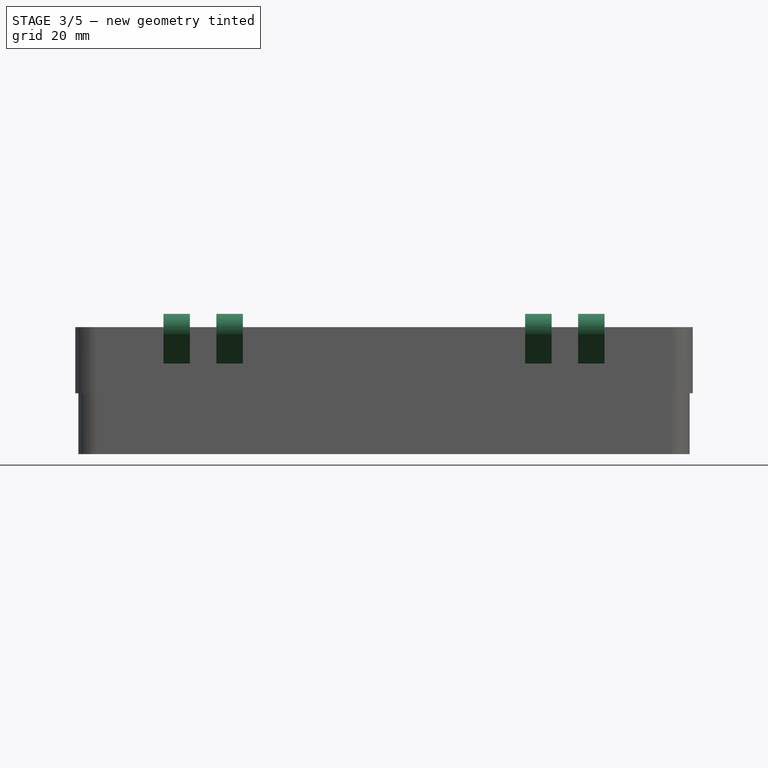
[diagram: stage 3 of 5 — front view after this stage's code; geometry added in this stage tinted green]
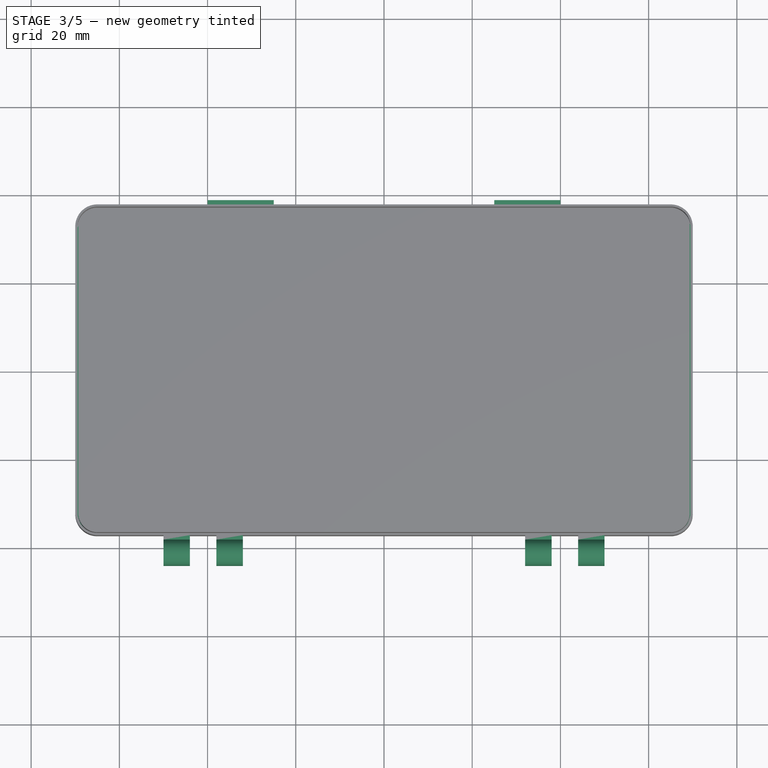
[diagram: stage 3 of 5 — top view after this stage's code; geometry added in this stage tinted green]
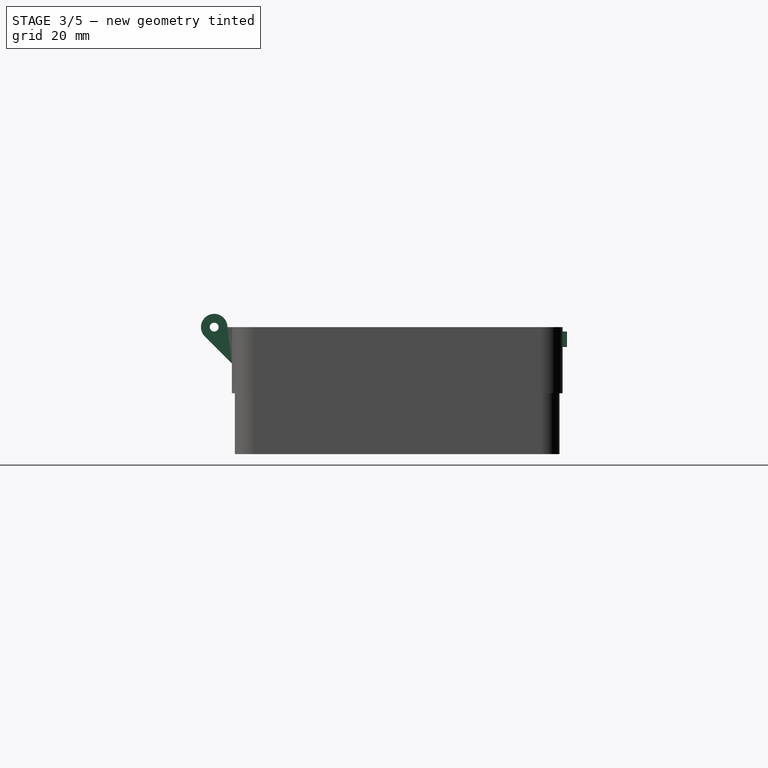
[diagram: stage 3 of 5 — right view after this stage's code; geometry added in this stage tinted green]
FEATURE [Sketcher::SketchObject] Sketch001  label="inside cutout"
  ArcFitTolerance = 1e-06
  AttachmentSupport = -> [Pad]
  ExternalGeometry = -> [Pad]
  FullyConstrained = true
  MakeInternals = false
  MapMode = 5
  Placement = pos=(0,0,15) rot=(0,0,1;0rad)
  expr: Constraints[19] = Spreadsheet.inside_corner_radius
  expr: Constraints[21] = Spreadsheet.outside_width - 2 * Spreadsheet.inside_border
  expr: Constraints[22] = Spreadsheet.outside_length - 2 * Spreadsheet.inside_border
  sketch-geometry (10):
    g0: LineSegment StartX=-69.5 StartY=32.5 StartZ=0 EndX=-69.5 EndY=-32.5 EndZ=0
    g1: LineSegment StartX=-65 StartY=-37 StartZ=0 EndX=65 EndY=-37 EndZ=0
    g2: LineSegment StartX=69.5 StartY=-32.5 StartZ=0 EndX=69.5 EndY=32.5 EndZ=0
    g3: LineSegment StartX=65 StartY=37 StartZ=0 EndX=-65 EndY=37 EndZ=0
    g4: ArcOfCircle CenterX=-65 CenterY=32.5 CenterZ=0 NormalX=0 NormalY=0 NormalZ=1 AngleXU=0 Radius=4.5 StartAngle=1.5708 EndAngle=3.14159
    g5: ArcOfCircle CenterX=-65 CenterY=-32.5 CenterZ=0 NormalX=0 NormalY=0 NormalZ=1 AngleXU=0 Radius=4.5 StartAngle=3.14159 EndAngle=4.71239
    g6: ArcOfCircle CenterX=65 CenterY=-32.5 CenterZ=0 NormalX=0 NormalY=0 NormalZ=1 AngleXU=0 Radius=4.5 StartAngle=4.71239 EndAngle=6.28319
    g7: ArcOfCircle CenterX=65 CenterY=32.5 CenterZ=0 NormalX=0 NormalY=0 NormalZ=1 AngleXU=0 Radius=4.5 StartAngle=2.83826e-11 EndAngle=1.5708
    g8: GeomPoint [constr] X=-69.5 Y=37 Z=0
    g9: GeomPoint [constr] X=69.5 Y=-37 Z=0
  constraints (23):
    c: Tangent(g0,g4) = -1.5708
    c: Tangent(g0,g5) = -1.5708
    c: Tangent(g1,g5) = -1.5708
    c: Tangent(g1,g6) = -1.5708
    c: Tangent(g2,g6) = -1.5708
    c: Tangent(g2,g7) = -1.5708
    c: Tangent(g3,g7) = -1.5708
    c: Tangent(g3,g4) = -1.5708
    c: Vertical(g0)
    c: Vertical(g2)
    c: Horizontal(g1)
    c: Horizontal(g3)
    c: Equal(g4,g5)
    c: Equal(g5,g6)
    c: Equal(g6,g7)
    c: PointOnObject(g8,g0)
    c: PointOnObject(g8,g3)
    c: PointOnObject(g9,g1)
    c: PointOnObject(g9,g2)
    c: Radius(g5) = 4.5
    c: Symmetric(g4,g6,g-1)
    c: DistanceY(g1,g3) = 74
    c: DistanceX(g0,g2) = 139
FEATURE [PartDesign::Pocket] Pocket
  BaseFeature = -> Pad
  Direction = (0,0,-1)
  Length = 14
  Length2 = 5
  Profile = -> Sketch001
  ReferenceAxis = -> Sketch001 [N_Axis]
  Refine = true
  Suppressed = false
  Type = 0
  expr: Length = Spreadsheet.bottom_height - Spreadsheet.bottom_thickness
FEATURE [Spreadsheet::Sheet] Spreadsheet
  cells = B2='Ma Ant D1; C2='Small Demo; D2='Large box; E2='Ma Ant D1; A3='Outside length; B3(outside_length)==140 mm; C3==60 mm; D3==120 mm; E3==150 mm; A4='Outside width; B4(outside_width)==75 mm; C4==30 mm; D4==80 mm; E4==80 mm; A5='Outside corner radius; B5(outside_corner_radius)==5 mm; C5==5 mm; D5==5 mm; E5==5 mm; A6='Inside border; B6(inside_border)==0.5 mm; C6==0.5 mm; D6==0.5 mm; E6==0.5 mm; A7='Inside corner radius; B7(inside_corner_radius)==B5 - B6; C7==C5 - C6; D7==D5 - D6; E7==E5 - E6; A9='Bottom height; B9(bottom_height)==15 mm; C9==10 mm; D9==20 mm; E9==20 mm; G9='Minimum size: 9.5mm, otherwise the final chamfer will fail.; A10='Top height; B10(top_height)==15 mm; C10==10 mm; D10==10 mm; E10==10 mm; G10='Minimum size: 9.5mm, otherwise the final chamfer will fail.; A11='Bottom thickness; B11(bottom_thickness)==1 mm; C11==1 mm; D11==1 mm; E11==1 mm; A12='Top thickness; B12(top_thickness)==1 mm; C12==1 mm; D12==1 mm; E12==1 mm; A14='hinge outside radius; B14(hinge_outside_radius)==6 mm; C14==6 mm; D14==6 mm; E14==6 mm; A15='hinge inside radius; B15(hinge_inside_radius)==2 mm; C15==2.2 mm; D15==2 mm; E15==2 mm; A16='hinge offset; B16(hinge_offset)==1 mm; C16==1 mm; D16==1 mm; E16==1 mm; A17='hinge distance from outside; B17(hinge_dist_outside)==20 mm; C17==10 mm; D17==20 mm; E17==20 mm; A18='hinge width bottom; B18(hinge_width_bottom)==6 mm; C18==6 mm; D18==6 mm; E18==6 mm; A19='hinge top bottom margin; B19(hinge_margin)==0.2 mm; C19==0.2 mm; D19==0.2 mm; E19==0.2 mm; A21='clamp distance from outside; B21(clamp_dist_outside)==30 mm; C21==10 mm; D21==30 mm; E21==30 mm; A22='clamp width; B22(clamp_width)==15 mm; C22==15 mm; D22==15 mm; E22==15 mm; A23='camp bottom height; B23(clamp_bottom_height)==3.5 mm; C23==3.5 mm; D23==3.5 mm; E23==3.5 mm; A25='Insert border margin; B25(insert_margin)==0.2 mm; C25==0.2 mm; D25==0.2 mm; E25==0.2 mm; A26='Insert radius; B26(insert_radius)==B7 - B25; C26==C7 - C25; D26==D7 - D25; E26==E7 - E25; A27='Insert height margin; B27(insert_height_margin)==0.2 mm; C27==0.2 mm; D27==0.2 mm; E27==0.2 mm; A28='Bottom insert height; B28(bottom_insert_height)==B9 - B11 - B27; C28==C9 - C11 - C27; D28==D9 - D11 - D27; E28==E9 - E11 - E27; A29='Top insert height; B29(top_insert_height)==B10 - B12 - B27; C29==C10 - C12 - C27; D29==D10 - D12 - D27; E29==E10 - E12 - E27
FEATURE [Sketcher::SketchObject] Sketch002  label="hinge definition"
  ArcFitTolerance = 1e-06
  AttachmentSupport = -> [Pocket]
  FullyConstrained = true
  MakeInternals = false
  MapMode = 5
  Placement = pos=(70,0,0) rot=(0.57735,0.57735,0.57735;2.0944rad)
  expr: Constraints[19] = Spreadsheet.bottom_height
  expr: Constraints[1] = Spreadsheet.hinge_outside_radius
  expr: Constraints[21] = Spreadsheet.outside_width / 2
  expr: Constraints[23] = Spreadsheet.hinge_offset
  expr: Constraints[2] = Spreadsheet.hinge_inside_radius
  sketch-geometry (9):
    g0: ArcOfCircle CenterX=-41.5 CenterY=15 CenterZ=0 NormalX=0 NormalY=0 NormalZ=1 AngleXU=0 Radius=3 StartAngle=0 EndAngle=3.92699
    g1: Circle CenterX=-41.5 CenterY=15 CenterZ=0 NormalX=0 NormalY=0 NormalZ=1 AngleXU=0 Radius=1
    g2: LineSegment StartX=-37.5 StartY=15 StartZ=0 EndX=-38.5 EndY=15 EndZ=0
    g3: LineSegment StartX=-43.6213 StartY=12.8787 StartZ=0 EndX=-37.5 EndY=6.75736 EndZ=0
    g4: LineSegment StartX=-37.5 StartY=15 StartZ=0 EndX=-37.5 EndY=6.75736 EndZ=0
    g5: LineSegment [constr] StartX=-41.5 StartY=15 StartZ=0 EndX=-43.6213 EndY=12.8787 EndZ=0
    g6: LineSegment [constr] StartX=-41.5 StartY=15 StartZ=0 EndX=-38.5 EndY=15 EndZ=0
    g7: LineSegment [constr] StartX=-37.5 StartY=15 StartZ=0 EndX=0 EndY=15 EndZ=0
    g8: LineSegment [constr] StartX=-37.5 StartY=6.75736 StartZ=0 EndX=-37.5 EndY=0 EndZ=0
  constraints (24):
    c: Coincident(g1,g0)
    c: Diameter(g0) = 6
    c: Diameter(g1) = 2
    c: Coincident(g0,g2)
    c: Tangent(g3,g0) = -1.5708
    c: Coincident(g4,g3)
    c: Horizontal(g2)
    c: Coincident(g5,g0)
    c: Coincident(g5,g0)
    c: Coincident(g6,g0)
    c: Coincident(g6,g0)
    c: Angle(g5,g6) = 2.35619
    c: Coincident(g7,g2)
    c: PointOnObject(g7,g-2)
    c: Horizontal(g7)
    c: Coincident(g2,g4)
    c: Coincident(g8,g3)
    c: PointOnObject(g8,g-1)
    c: Vertical(g8)
    c: DistanceY(g8,g2) = 15
    c: Vertical(g4)
    c: DistanceX(g2,g7) = 37.5
    c: Horizontal(g6)
    c: DistanceX(g2,g2) = 1
FEATURE [PartDesign::Pad] Pad001
  BaseFeature = -> Pocket
  Direction = (1,0,0)
  Length = 140
  Length2 = 10
  Profile = -> Sketch002
  ReferenceAxis = -> Sketch002 [N_Axis]
  Refine = true
  Reversed = true
  Suppressed = false
  Type = 0
  expr: Length = Spreadsheet.outside_length
FEATURE [Sketcher::SketchObject] Sketch008  label="hinge cutout"
  ArcFitTolerance = 1e-06
  AttachmentSupport = -> [Pad001]
  ExternalGeometry = -> [Pad001]
  FullyConstrained = true
  MakeInternals = false
  MapMode = 5
  Placement = pos=(0,0,15) rot=(0,0,1;0rad)
  expr: Constraints[49] = Spreadsheet.outside_width / 2 - 0.01 mm
  expr: Constraints[53] = Spreadsheet.outside_length / 2
  expr: Constraints[54] = Spreadsheet.outside_length / 2 - Spreadsheet.hinge_dist_outside
  expr: Constraints[55] = Spreadsheet.outside_length / 2 - Spreadsheet.hinge_dist_outside - Spreadsheet.hinge_width_bottom
  expr: Constraints[56] = Spreadsheet.outside_length / 2 - Spreadsheet.hinge_dist_outside - 2 * Spreadsheet.hinge_width_bottom
  expr: Constraints[57] = Spreadsheet.outside_length / 2 - Spreadsheet.hinge_dist_outside - 3 * Spreadsheet.hinge_width_bottom
  sketch-geometry (21):
    g0: LineSegment StartX=-70 StartY=-37.49 StartZ=0 EndX=-70 EndY=-57.49 EndZ=0
    g1: LineSegment StartX=-70 StartY=-57.49 StartZ=0 EndX=-50 EndY=-57.49 EndZ=0
    g2: LineSegment StartX=-50 StartY=-57.49 StartZ=0 EndX=-50 EndY=-37.49 EndZ=0
    g3: LineSegment StartX=50 StartY=-37.49 StartZ=0 EndX=50 EndY=-57.49 EndZ=0
    g4: LineSegment StartX=50 StartY=-57.49 StartZ=0 EndX=70 EndY=-57.49 EndZ=0
    g5: LineSegment StartX=70 StartY=-57.49 StartZ=0 EndX=70 EndY=-37.49 EndZ=0
    g6: LineSegment [constr] StartX=-50 StartY=-57.49 StartZ=0 EndX=50 EndY=-57.49 EndZ=0
    g7: LineSegment StartX=38 StartY=-37.49 StartZ=0 EndX=44 EndY=-37.49 EndZ=0
    g8: LineSegment StartX=44 StartY=-37.49 StartZ=0 EndX=44 EndY=-57.49 EndZ=0
    g9: LineSegment StartX=44 StartY=-57.49 StartZ=0 EndX=38 EndY=-57.49 EndZ=0
    g10: LineSegment StartX=38 StartY=-57.49 StartZ=0 EndX=38 EndY=-37.49 EndZ=0
    g11: LineSegment StartX=-38 StartY=-37.49 StartZ=0 EndX=-38 EndY=-57.49 EndZ=0
    g12: LineSegment StartX=-38 StartY=-57.49 StartZ=0 EndX=-44 EndY=-57.49 EndZ=0
    g13: LineSegment StartX=-44 StartY=-57.49 StartZ=0 EndX=-44 EndY=-37.49 EndZ=0
    g14: LineSegment StartX=-44 StartY=-37.49 StartZ=0 EndX=-38 EndY=-37.49 EndZ=0
    g15: LineSegment StartX=-32 StartY=-37.49 StartZ=0 EndX=-32 EndY=-57.49 EndZ=0
    g16: LineSegment StartX=-32 StartY=-57.49 StartZ=0 EndX=32 EndY=-57.49 EndZ=0
    g17: LineSegment StartX=32 StartY=-57.49 StartZ=0 EndX=32 EndY=-37.49 EndZ=0
    g18: LineSegment StartX=32 StartY=-37.49 StartZ=0 EndX=-32 EndY=-37.49 EndZ=0
    g19: LineSegment StartX=-70 StartY=-37.49 StartZ=0 EndX=-50 EndY=-37.49 EndZ=0
    g20: LineSegment StartX=50 StartY=-37.49 StartZ=0 EndX=70 EndY=-37.49 EndZ=0
  constraints (58):
    c: Coincident(g0,g1)
    c: Coincident(g1,g2)
    c: Vertical(g0)
    c: Vertical(g2)
    c: Horizontal(g1)
    c: Coincident(g3,g4)
    c: Coincident(g4,g5)
    c: Horizontal(g4)
    c: Vertical(g3)
    c: Vertical(g5)
    c: Coincident(g6,g1)
    c: Coincident(g6,g3)
    c: Equal(g1,g4)
    c: DistanceY(g0,g0) = 20
    c: Coincident(g7,g8)
    c: Coincident(g8,g9)
    c: Coincident(g9,g10)
    c: Coincident(g10,g7)
    c: Horizontal(g7)
    c: Horizontal(g9)
    c: Vertical(g8)
    c: Vertical(g10)
    c: PointOnObject(g8,g6)
    c: Coincident(g11,g12)
    c: Coincident(g12,g13)
    c: Coincident(g13,g14)
    c: Coincident(g14,g11)
    c: Vertical(g11)
    c: Vertical(g13)
    c: Horizontal(g14)
    c: Coincident(g15,g16)
    c: Coincident(g16,g17)
    c: Coincident(g17,g18)
    c: Coincident(g18,g15)
    c: Vertical(g15)
    c: Vertical(g17)
    c: Horizontal(g18)
    c: PointOnObject(g16,g6)
    c: Symmetric(g15,g16,g-2)
    c: Symmetric(g12,g8,g-2)
    c: Symmetric(g11,g9,g-2)
    c: Coincident(g19,g0)
    c: Coincident(g19,g2)
    c: Horizontal(g19)
    c: Symmetric(g3,g1,g-2)
    c: Horizontal(g2,g11)
    c: Horizontal(g13,g15)
    c: Horizontal(g7,g3)
    c: Horizontal(g17,g7)
    c: Distance(g0,g-1) = 37.49
    c: Coincident(g20,g3)
    c: Coincident(g20,g5)
    c: Horizontal(g20)
    c: Distance(g4,g-2) = 70
    c: Distance(g3,g-2) = 50
    c: Distance(g8,g-2) = 44
    c: Distance(g9,g-2) = 38
    c: Distance(g16,g-2) = 32
FEATURE [PartDesign::Pocket] Pocket004
  BaseFeature = -> Pad001
  Direction = (0,0,-1)
  Length = 15
  Length2 = 5
  Midplane = true
  Profile = -> Sketch008
  ReferenceAxis = -> Sketch008 [N_Axis]
  Refine = true
  Suppressed = false
  Type = 1
FEATURE [Sketcher::SketchObject] Sketch009
  ArcFitTolerance = 1e-06
  AttachmentSupport = -> [Pocket004]
  FullyConstrained = true
  MakeInternals = false
  MapMode = 5
  Placement = pos=(0,37.5,0) rot=(0,0.707107,0.707107;3.14159rad)
  expr: Constraints[23] = Spreadsheet.outside_length
  expr: Constraints[24] = Spreadsheet.bottom_height
  expr: Constraints[26] = Spreadsheet.bottom_height - 1 mm - Spreadsheet.clamp_bottom_height
  expr: Constraints[27] = Spreadsheet.outside_length / 2 - Spreadsheet.clamp_width - Spreadsheet.clamp_dist_outside
  expr: Constraints[8] = Spreadsheet.clamp_bottom_height
  expr: Constraints[9] = Spreadsheet.clamp_width
  sketch-geometry (11):
    g0: LineSegment StartX=25 StartY=14 StartZ=0 EndX=25 EndY=10.5 EndZ=0
    g1: LineSegment StartX=25 StartY=10.5 StartZ=0 EndX=40 EndY=10.5 EndZ=0
    g2: LineSegment StartX=40 StartY=10.5 StartZ=0 EndX=40 EndY=14 EndZ=0
    g3: LineSegment StartX=40 StartY=14 StartZ=0 EndX=25 EndY=14 EndZ=0
    g4: LineSegment StartX=-25 StartY=14 StartZ=0 EndX=-25 EndY=10.5 EndZ=0
    g5: LineSegment StartX=-25 StartY=10.5 StartZ=0 EndX=-40 EndY=10.5 EndZ=0
    g6: LineSegment StartX=-40 StartY=10.5 StartZ=0 EndX=-40 EndY=14 EndZ=0
    g7: LineSegment [constr] StartX=70 StartY=0 StartZ=0 EndX=70 EndY=15 EndZ=0
    g8: LineSegment [constr] StartX=70 StartY=15 StartZ=0 EndX=-70 EndY=15 EndZ=0
    g9: LineSegment [constr] StartX=-70 StartY=15 StartZ=0 EndX=-70 EndY=0 EndZ=0
    g10: LineSegment StartX=-40 StartY=14 StartZ=0 EndX=-25 EndY=14 EndZ=0
  constraints (32):
    c: Coincident(g0,g1)
    c: Coincident(g1,g2)
    c: Coincident(g2,g3)
    c: Coincident(g3,g0)
    c: Vertical(g0)
    c: Vertical(g2)
    c: Horizontal(g1)
    c: Horizontal(g3)
    c: Distance(g0,g0) = 3.5
    c: DistanceX(g1,g1) = 15
    c: Coincident(g4,g5)
    c: Coincident(g5,g6)
    c: Vertical(g4)
    c: Vertical(g6)
    c: Horizontal(g5)
    c: Equal(g6,g0)
    c: Equal(g5,g1)
    c: Coincident(g7,g8)
    c: Coincident(g8,g9)
    c: Horizontal(g8)
    c: Vertical(g7)
    c: Vertical(g9)
    c: PointOnObject(g9,g-1)
    c: DistanceX(g8,g8) = 140
    c: DistanceY(g7,g7) = 15
    c: Symmetric(g7,g9,g-2)
    c: DistanceY(g9,g4) = 10.5
    c: Distance(g0,g-2) = 25
    c: Coincident(g10,g6)
    c: Coincident(g10,g4)
    c: Horizontal(g10)
    c: Symmetric(g4,g0,g-2)
FEATURE [PartDesign::Pad] Pad004
  BaseFeature = -> Pocket004
  Direction = (0,1,-2e-16)
  Length = 1
  Length2 = 10
  Profile = -> Sketch009
  ReferenceAxis = -> Sketch009 [N_Axis]
  Refine = true
  Suppressed = false
  Type = 0
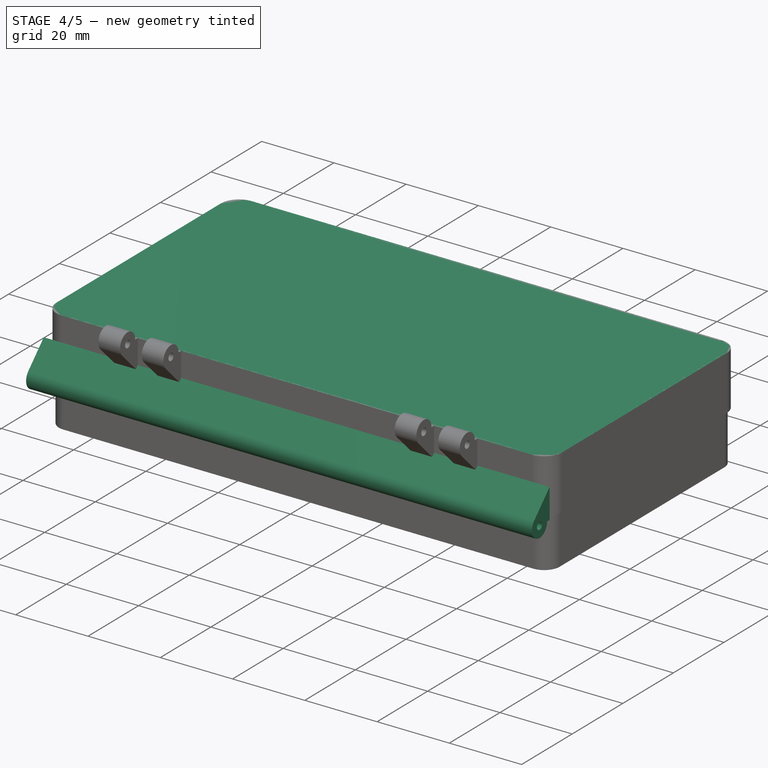
[diagram: stage 4 of 5 — iso view after this stage's code; geometry added in this stage tinted green]
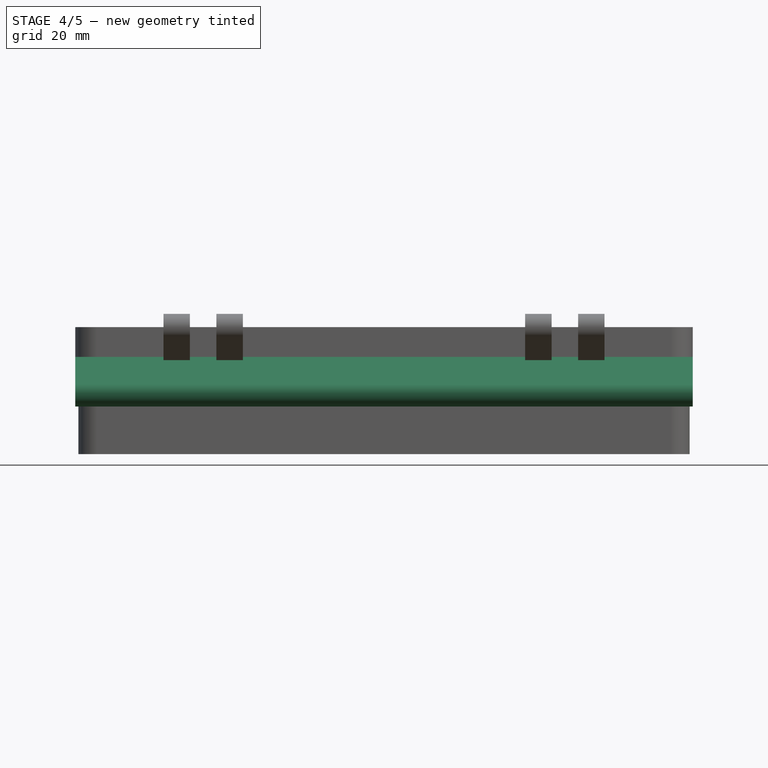
[diagram: stage 4 of 5 — front view after this stage's code; geometry added in this stage tinted green]
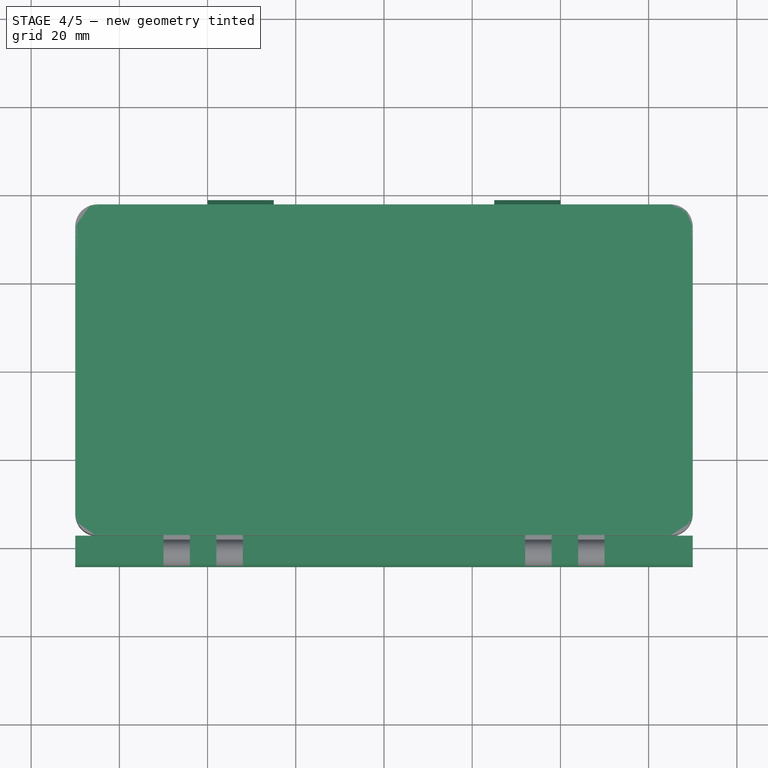
[diagram: stage 4 of 5 — top view after this stage's code; geometry added in this stage tinted green]
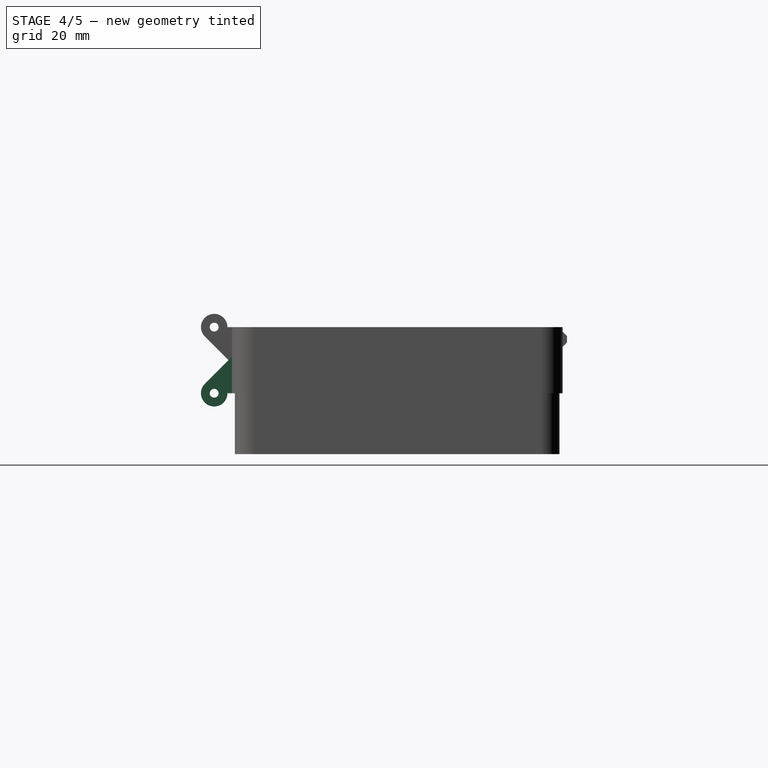
[diagram: stage 4 of 5 — right view after this stage's code; geometry added in this stage tinted green]
FEATURE [Sketcher::SketchObject] Sketch004  label="top case volume"
  ArcFitTolerance = 1e-06
  AttachmentSupport = -> [XY_Plane003]
  FullyConstrained = true
  MakeInternals = false
  MapMode = 5
  expr: Constraints[19] = Spreadsheet.outside_corner_radius
  expr: Constraints[21] = Spreadsheet.outside_length
  expr: Constraints[22] = Spreadsheet.outside_width
  sketch-geometry (10):
    g0: LineSegment StartX=-70 StartY=32.5 StartZ=0 EndX=-70 EndY=-32.5 EndZ=0
    g1: LineSegment StartX=-65 StartY=-37.5 StartZ=0 EndX=65 EndY=-37.5 EndZ=0
    g2: LineSegment StartX=70 StartY=-32.5 StartZ=0 EndX=70 EndY=32.5 EndZ=0
    g3: LineSegment StartX=65 StartY=37.5 StartZ=0 EndX=-65 EndY=37.5 EndZ=0
    g4: ArcOfCircle CenterX=-65 CenterY=32.5 CenterZ=0 NormalX=0 NormalY=0 NormalZ=1 AngleXU=0 Radius=5 StartAngle=1.5708 EndAngle=3.14159
    g5: ArcOfCircle CenterX=-65 CenterY=-32.5 CenterZ=0 NormalX=0 NormalY=0 NormalZ=1 AngleXU=0 Radius=5 StartAngle=3.14159 EndAngle=4.71239
    g6: ArcOfCircle CenterX=65 CenterY=-32.5 CenterZ=0 NormalX=0 NormalY=0 NormalZ=1 AngleXU=0 Radius=5 StartAngle=4.71239 EndAngle=6.28319
    g7: ArcOfCircle CenterX=65 CenterY=32.5 CenterZ=0 NormalX=0 NormalY=0 NormalZ=1 AngleXU=0 Radius=5 StartAngle=2.69105e-11 EndAngle=1.5708
    g8: GeomPoint [constr] X=-70 Y=37.5 Z=0
    g9: GeomPoint [constr] X=70 Y=-37.5 Z=0
  constraints (23):
    c: Tangent(g0,g4) = -1.5708
    c: Tangent(g0,g5) = -1.5708
    c: Tangent(g1,g5) = -1.5708
    c: Tangent(g1,g6) = -1.5708
    c: Tangent(g2,g6) = -1.5708
    c: Tangent(g2,g7) = -1.5708
    c: Tangent(g3,g7) = -1.5708
    c: Tangent(g3,g4) = -1.5708
    c: Vertical(g0)
    c: Vertical(g2)
    c: Horizontal(g1)
    c: Horizontal(g3)
    c: Equal(g4,g5)
    c: Equal(g5,g6)
    c: Equal(g6,g7)
    c: PointOnObject(g8,g0)
    c: PointOnObject(g8,g3)
    c: PointOnObject(g9,g1)
    c: PointOnObject(g9,g2)
    c: Radius(g5) = 5
    c: Symmetric(g8,g9,g-1)
    c: DistanceX(g8,g2) = 140
    c: DistanceY(g1,g3) = 75
FEATURE [PartDesign::Pad] Pad002
  Direction = (0,0,1)
  Length = 15
  Length2 = 10
  Profile = -> Sketch004
  ReferenceAxis = -> Sketch004 [N_Axis]
  Refine = true
  Suppressed = false
  Type = 0
  expr: Length = Spreadsheet.top_height
FEATURE [Sketcher::SketchObject] Sketch005  label="top inside cutout"
  ArcFitTolerance = 1e-06
  AttachmentSupport = -> [Pad002]
  ExternalGeometry = -> [Pad002]
  FullyConstrained = true
  MakeInternals = false
  MapMode = 5
  Placement = pos=(0,0,0) rot=(1,0,0;3.14159rad)
  expr: Constraints[19] = Spreadsheet.inside_corner_radius
  expr: Constraints[21] = Spreadsheet.outside_length - 2 * Spreadsheet.inside_border
  expr: Constraints[22] = Spreadsheet.outside_width - 2 * Spreadsheet.inside_border
  sketch-geometry (10):
    g0: LineSegment StartX=-69.5 StartY=32.5 StartZ=0 EndX=-69.5 EndY=-32.5 EndZ=0
    g1: LineSegment StartX=-65 StartY=-37 StartZ=0 EndX=65 EndY=-37 EndZ=0
    g2: LineSegment StartX=69.5 StartY=-32.5 StartZ=0 EndX=69.5 EndY=32.5 EndZ=0
    g3: LineSegment StartX=65 StartY=37 StartZ=0 EndX=-65 EndY=37 EndZ=0
    g4: ArcOfCircle CenterX=-65 CenterY=32.5 CenterZ=0 NormalX=0 NormalY=0 NormalZ=1 AngleXU=0 Radius=4.5 StartAngle=1.5708 EndAngle=3.14159
    g5: ArcOfCircle CenterX=-65 CenterY=-32.5 CenterZ=0 NormalX=0 NormalY=0 NormalZ=1 AngleXU=0 Radius=4.5 StartAngle=3.14159 EndAngle=4.71239
    g6: ArcOfCircle CenterX=65 CenterY=-32.5 CenterZ=0 NormalX=0 NormalY=0 NormalZ=1 AngleXU=0 Radius=4.5 StartAngle=4.71239 EndAngle=6.28319
    g7: ArcOfCircle CenterX=65 CenterY=32.5 CenterZ=0 NormalX=0 NormalY=0 NormalZ=1 AngleXU=0 Radius=4.5 StartAngle=2.83827e-11 EndAngle=1.5708
    g8: GeomPoint [constr] X=-69.5 Y=37 Z=0
    g9: GeomPoint [constr] X=69.5 Y=-37 Z=0
  constraints (23):
    c: Tangent(g0,g4) = -1.5708
    c: Tangent(g0,g5) = -1.5708
    c: Tangent(g1,g5) = -1.5708
    c: Tangent(g1,g6) = -1.5708
    c: Tangent(g2,g6) = -1.5708
    c: Tangent(g2,g7) = -1.5708
    c: Tangent(g3,g7) = -1.5708
    c: Tangent(g3,g4) = -1.5708
    c: Vertical(g0)
    c: Vertical(g2)
    c: Horizontal(g1)
    c: Horizontal(g3)
    c: Equal(g4,g5)
    c: Equal(g5,g6)
    c: Equal(g6,g7)
    c: PointOnObject(g8,g0)
    c: PointOnObject(g8,g3)
    c: PointOnObject(g9,g1)
    c: PointOnObject(g9,g2)
    c: Radius(g5) = 4.5
    c: Symmetric(g8,g9,g-1)
    c: DistanceX(g0,g2) = 139
    c: DistanceY(g1,g3) = 74
FEATURE [PartDesign::Pocket] Pocket002
  BaseFeature = -> Pad002
  Direction = (0,0,1)
  Length = 14
  Length2 = 5
  Profile = -> Sketch005
  ReferenceAxis = -> Sketch005 [N_Axis]
  Refine = true
  Suppressed = false
  Type = 0
  expr: Length = Spreadsheet.top_height - Spreadsheet.top_thickness
FEATURE [Sketcher::SketchObject] Sketch006  label="hinge definition001"
  ArcFitTolerance = 1e-06
  AttachmentSupport = -> [Pocket002]
  FullyConstrained = true
  MakeInternals = false
  MapMode = 5
  Placement = pos=(70,0,0) rot=(0.57735,0.57735,0.57735;2.0944rad)
  expr: Constraints[17] = Spreadsheet.outside_width / 2
  expr: Constraints[18] = Spreadsheet.outside_width / 2 + Spreadsheet.hinge_offset
  expr: Constraints[4] = Spreadsheet.hinge_outside_radius
  expr: Constraints[5] = Spreadsheet.hinge_inside_radius
  sketch-geometry (7):
    g0: LineSegment [constr] StartX=0 StartY=0 StartZ=0 EndX=-41.5 EndY=0 EndZ=0
    g1: Circle CenterX=-41.5 CenterY=0 CenterZ=0 NormalX=0 NormalY=0 NormalZ=1 AngleXU=0 Radius=1
    g2: ArcOfCircle CenterX=-41.5 CenterY=0 CenterZ=0 NormalX=0 NormalY=0 NormalZ=1 AngleXU=0 Radius=3 StartAngle=2.35619 EndAngle=6.28319
    g3: LineSegment StartX=-43.6213 StartY=2.12132 StartZ=0 EndX=-37.5 EndY=8.24264 EndZ=0
    g4: LineSegment StartX=-38.5 StartY=0 StartZ=0 EndX=-37.5 EndY=0 EndZ=0
    g5: LineSegment StartX=-37.5 StartY=0 StartZ=0 EndX=-37.5 EndY=8.24264 EndZ=0
    g6: LineSegment [constr] StartX=-43.6213 StartY=2.12132 StartZ=0 EndX=-41.5 EndY=0 EndZ=0
  constraints (19):
    c: Coincident(g0,g-1)
    c: PointOnObject(g0,g-1)
    c: Coincident(g1,g0)
    c: Coincident(g2,g0)
    c: Diameter(g2) = 6
    c: Diameter(g1) = 2
    c: PointOnObject(g4,g2)
    c: PointOnObject(g2,g0)
    c: Tangent(g2,g3) = 1.5708
    c: Coincident(g5,g3)
    c: Coincident(g6,g2)
    c: Coincident(g6,g0)
    c: Angle(g4,g6) = 2.35619
    c: Horizontal(g4)
    c: Coincident(g4,g5)
    c: Vertical(g5)
    c: PointOnObject(g4,g0)
    c: DistanceX(g4,g0) = 37.5
    c: DistanceX(g2,g0) = 38.5
FEATURE [PartDesign::Pad] Pad003
  BaseFeature = -> Pocket002
  Direction = (1,0,0)
  Length = 140
  Length2 = 10
  Profile = -> Sketch006
  ReferenceAxis = -> Sketch006 [N_Axis]
  Refine = true
  Reversed = true
  Suppressed = false
  Type = 0
  expr: Length = Spreadsheet.outside_length
FEATURE [Sketcher::SketchObject] Sketch010
  ArcFitTolerance = 1e-06
  AttachmentSupport = -> [Pad004]
  FullyConstrained = true
  MakeInternals = false
  MapMode = 5
  Placement = pos=(-70,0,0) rot=(0.57735,-0.57735,-0.57735;2.0944rad)
  expr: Constraints[16] = Spreadsheet.bottom_height
  expr: Constraints[19] = Spreadsheet.bottom_height - 1 mm - Spreadsheet.clamp_bottom_height
  expr: Constraints[20] = Spreadsheet.bottom_height - 1 mm
  expr: Constraints[7] = Spreadsheet.outside_width / 2
  expr: Constraints[8] = Spreadsheet.outside_width / 2 + 1 mm
  sketch-geometry (7):
    g0: LineSegment StartX=-37.5 StartY=10.5 StartZ=0 EndX=-38.5 EndY=11.5 EndZ=0
    g1: LineSegment StartX=-38.5 StartY=11.5 StartZ=0 EndX=-38.5 EndY=10.5 EndZ=0
    g2: LineSegment StartX=-38.5 StartY=10.5 StartZ=0 EndX=-37.5 EndY=10.5 EndZ=0
    g3: LineSegment StartX=-38.5 StartY=13 StartZ=0 EndX=-37.5 EndY=14 EndZ=0
    g4: LineSegment StartX=-37.5 StartY=14 StartZ=0 EndX=-38.5 EndY=14 EndZ=0
    g5: LineSegment [constr] StartX=-37.5 StartY=15 StartZ=0 EndX=-37.5 EndY=10.5 EndZ=0
    g6: LineSegment StartX=-38.5 StartY=14 StartZ=0 EndX=-38.5 EndY=13 EndZ=0
  constraints (21):
    c: Coincident(g1,g0)
    c: Coincident(g2,g1)
    c: Coincident(g2,g0)
    c: Angle(g0,g2) = 0.785398
    c: Coincident(g3,g4)
    c: Vertical(g1)
    c: Horizontal(g2)
    c: DistanceX(g0,g-1) = 37.5
    c: DistanceX(g1,g-1) = 38.5
    c: Coincident(g5,g0)
    c: Vertical(g5)
    c: Coincident(g6,g4)
    c: Coincident(g6,g3)
    c: Vertical(g6)
    c: Angle(g4,g3) = 0.785398
    c: Horizontal(g4)
    c: Distance(g5,g-1) = 15
    c: PointOnObject(g3,g5)
    c: Vertical(g3,g0)
    c: Distance(g0,g-1) = 10.5
    c: Distance(g3,g-1) = 14
FEATURE [PartDesign::Pocket] Pocket005
  BaseFeature = -> Pad004
  Direction = (1,0,0)
  Length = 5
  Length2 = 5
  Profile = -> Sketch010
  ReferenceAxis = -> Sketch010 [N_Axis]
  Refine = true
  Suppressed = false
  Type = 1
FEATURE [PartDesign::Body] Body001
  AllowCompound = false
  Group = -> [Sketch004,Pad002,Sketch005,Pocket002,Sketch006,Pad003,Sketch007,Pocket003,Sketch011,Pad005,Sketch012,Pocket006,Chamfer]
  Origin = -> Origin003
  Tip = -> Chamfer
FEATURE [App::Part] Part001  label="Top shell"
  Group = -> [Body001]
  Origin = -> Origin002
  Placement = pos=(0,0,2) rot=(0,0,1;0rad)
FEATURE [PartDesign::Chamfer] Chamfer001
  Angle = 45
  Base = -> Pocket005 [Face4]
  BaseFeature = -> Pocket005
  ChamferType = 0
  FlipDirection = false
  Refine = true
  Size = 1
  Size2 = 1
  SupportTransform = false
  Suppressed = false
  UseAllEdges = false
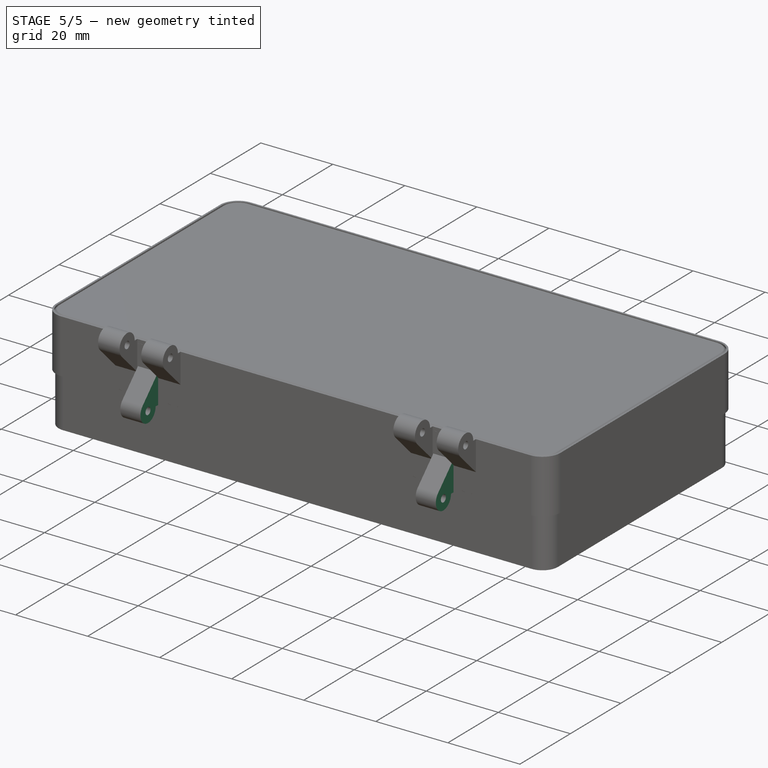
[diagram: stage 5 of 5 — iso view after this stage's code; geometry added in this stage tinted green]
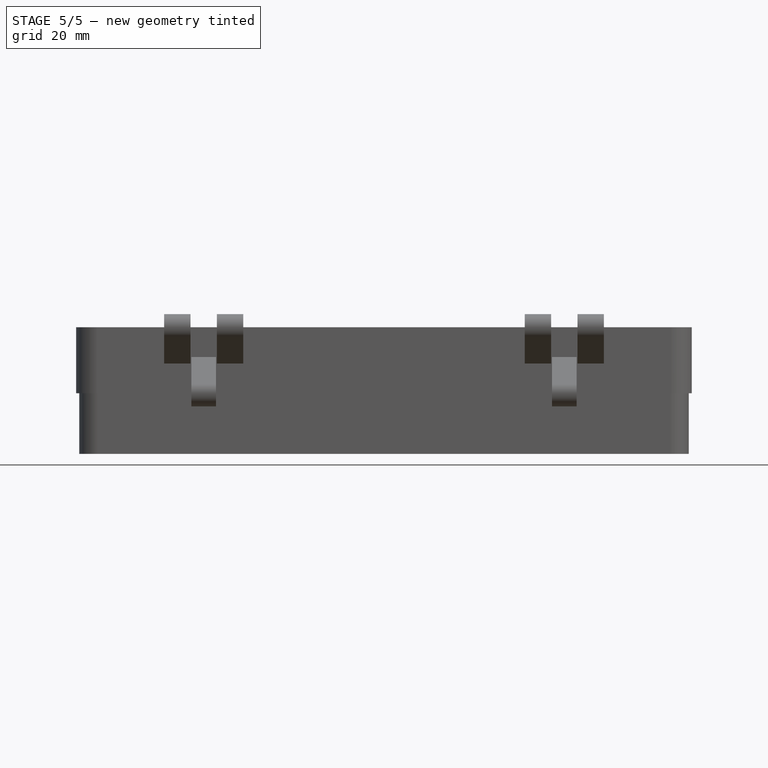
[diagram: stage 5 of 5 — front view after this stage's code; geometry added in this stage tinted green]
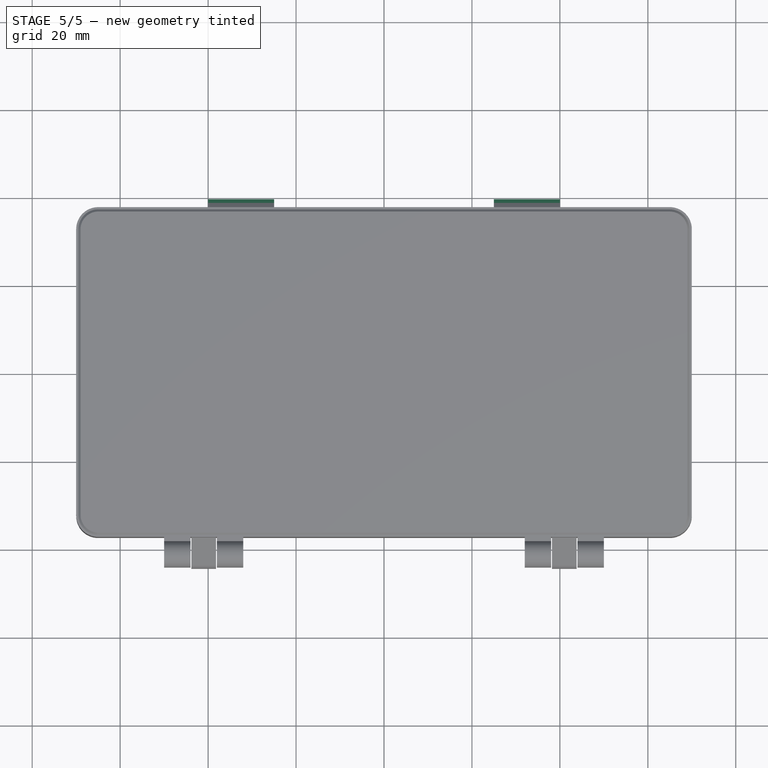
[diagram: stage 5 of 5 — top view after this stage's code; geometry added in this stage tinted green]
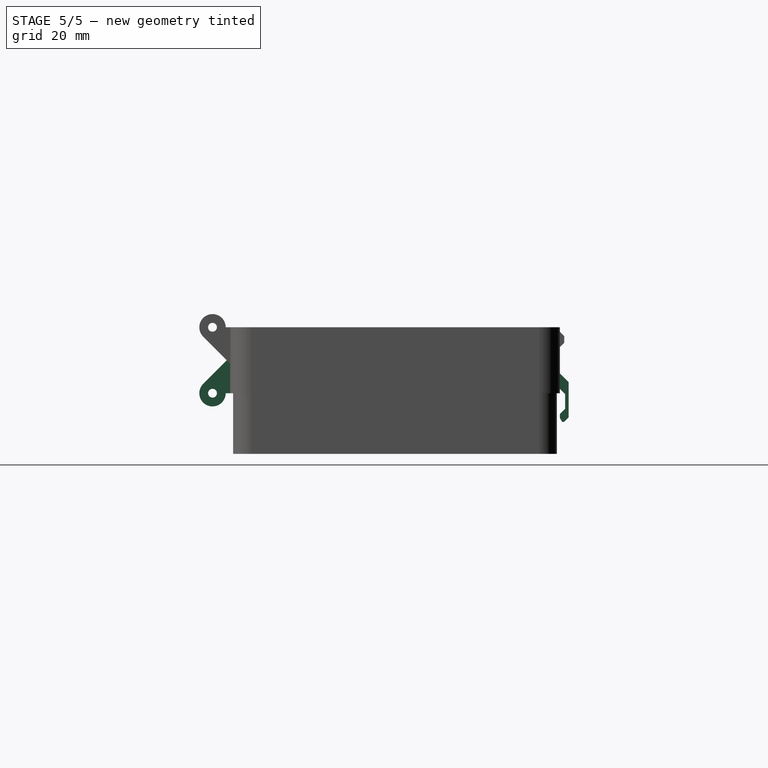
[diagram: stage 5 of 5 — right view after this stage's code; geometry added in this stage tinted green]
FEATURE [Sketcher::SketchObject] Sketch007  label="hinge cutout001"
  ArcFitTolerance = 1e-06
  AttachmentSupport = -> [Pad003]
  FullyConstrained = true
  MakeInternals = false
  MapMode = 5
  Placement = pos=(0,0,15) rot=(0,0,1;0rad)
  expr: Constraints[33] = Spreadsheet.outside_width / 2 - 0.01 mm
  expr: Constraints[34] = Spreadsheet.outside_length / 2
  expr: Constraints[36] = Spreadsheet.outside_length / 2 - Spreadsheet.hinge_dist_outside - Spreadsheet.hinge_width_bottom - Spreadsheet.hinge_margin
  expr: Constraints[37] = Spreadsheet.outside_length / 2 - Spreadsheet.hinge_dist_outside - 2 * Spreadsheet.hinge_width_bottom + Spreadsheet.hinge_margin
  sketch-geometry (14):
    g0: LineSegment StartX=43.8 StartY=-37.49 StartZ=0 EndX=43.8 EndY=-47.49 EndZ=0
    g1: LineSegment StartX=43.8 StartY=-47.49 StartZ=0 EndX=70 EndY=-47.49 EndZ=0
    g2: LineSegment StartX=70 StartY=-47.49 StartZ=0 EndX=70 EndY=-37.49 EndZ=0
    g3: LineSegment StartX=38.2 StartY=-37.49 StartZ=0 EndX=-38.2 EndY=-37.49 EndZ=0
    g4: LineSegment StartX=-38.2 StartY=-37.49 StartZ=0 EndX=-38.2 EndY=-47.49 EndZ=0
    g5: LineSegment StartX=-38.2 StartY=-47.49 StartZ=0 EndX=38.2 EndY=-47.49 EndZ=0
    g6: LineSegment StartX=38.2 StartY=-47.49 StartZ=0 EndX=38.2 EndY=-37.49 EndZ=0
    g7: LineSegment StartX=-70 StartY=-37.49 StartZ=0 EndX=-70 EndY=-47.49 EndZ=0
    g8: LineSegment StartX=-70 StartY=-47.49 StartZ=0 EndX=-43.8 EndY=-47.49 EndZ=0
    g9: LineSegment StartX=-43.8 StartY=-47.49 StartZ=0 EndX=-43.8 EndY=-37.49 EndZ=0
    g10: LineSegment [constr] StartX=38.2 StartY=-47.49 StartZ=0 EndX=43.8 EndY=-47.49 EndZ=0
    g11: LineSegment [constr] StartX=-43.8 StartY=-47.49 StartZ=0 EndX=-38.2 EndY=-47.49 EndZ=0
    g12: LineSegment StartX=-70 StartY=-37.49 StartZ=0 EndX=-43.8 EndY=-37.49 EndZ=0
    g13: LineSegment StartX=43.8 StartY=-37.49 StartZ=0 EndX=70 EndY=-37.49 EndZ=0
  constraints (38):
    c: Coincident(g0,g1)
    c: Coincident(g1,g2)
    c: Horizontal(g1)
    c: Vertical(g0)
    c: Vertical(g2)
    c: Coincident(g3,g4)
    c: Coincident(g4,g5)
    c: Coincident(g5,g6)
    c: Coincident(g6,g3)
    c: Horizontal(g3)
    c: Vertical(g4)
    c: Vertical(g6)
    c: Coincident(g7,g8)
    c: Coincident(g8,g9)
    c: Vertical(g7)
    c: Vertical(g9)
    c: Horizontal(g8)
    c: Horizontal(g8,g4)
    c: Coincident(g10,g5)
    c: Coincident(g10,g0)
    c: Coincident(g11,g8)
    c: Coincident(g11,g4)
    c: Equal(g11,g10)
    c: Symmetric(g4,g5,g-2)
    c: DistanceY(g7,g7) = 10
    c: Coincident(g12,g7)
    c: Coincident(g12,g9)
    c: Horizontal(g12)
    c: Coincident(g13,g0)
    c: Coincident(g13,g2)
    c: Horizontal(g13)
    c: Horizontal(g9,g3)
    c: Horizontal(g3,g0)
    c: Distance(g2,g-1) = 37.49
    c: Distance(g1,g-2) = 70
    c: Symmetric(g7,g1,g-2)
    c: Distance(g0,g-2) = 43.8
    c: Distance(g5,g-2) = 38.2
FEATURE [PartDesign::Pocket] Pocket003
  BaseFeature = -> Pad003
  Direction = (0,0,-1)
  Length = 5
  Length2 = 5
  Profile = -> Sketch007
  ReferenceAxis = -> Sketch007 [N_Axis]
  Refine = true
  Suppressed = false
  Type = 1
FEATURE [Sketcher::SketchObject] Sketch011
  ArcFitTolerance = 1e-06
  AttachmentSupport = -> [Pocket003]
  FullyConstrained = true
  MakeInternals = false
  MapMode = 5
  Placement = pos=(0,37.5,0) rot=(0,0.707107,0.707107;3.14159rad)
  expr: Constraints[18] = Spreadsheet.outside_length / 2 - Spreadsheet.clamp_width - Spreadsheet.clamp_dist_outside
  expr: Constraints[19] = Spreadsheet.clamp_width
  expr: Constraints[20] = 2 mm + Spreadsheet.clamp_bottom_height + 1 mm + 1 mm + Spreadsheet.clamp_bottom_height
  expr: Constraints[21] = 1 mm + Spreadsheet.clamp_bottom_height
  sketch-geometry (8):
    g0: LineSegment StartX=25 StartY=4.5 StartZ=0 EndX=25 EndY=-6.5 EndZ=0
    g1: LineSegment StartX=25 StartY=-6.5 StartZ=0 EndX=40 EndY=-6.5 EndZ=0
    g2: LineSegment StartX=40 StartY=-6.5 StartZ=0 EndX=40 EndY=4.5 EndZ=0
    g3: LineSegment StartX=40 StartY=4.5 StartZ=0 EndX=25 EndY=4.5 EndZ=0
    g4: LineSegment StartX=-25 StartY=4.5 StartZ=0 EndX=-40 EndY=4.5 EndZ=0
    g5: LineSegment StartX=-40 StartY=4.5 StartZ=0 EndX=-40 EndY=-6.5 EndZ=0
    g6: LineSegment StartX=-40 StartY=-6.5 StartZ=0 EndX=-25 EndY=-6.5 EndZ=0
    g7: LineSegment StartX=-25 StartY=-6.5 StartZ=0 EndX=-25 EndY=4.5 EndZ=0
  constraints (22):
    c: Coincident(g0,g1)
    c: Coincident(g1,g2)
    c: Coincident(g2,g3)
    c: Coincident(g3,g0)
    c: Vertical(g0)
    c: Vertical(g2)
    c: Horizontal(g1)
    c: Horizontal(g3)
    c: Coincident(g4,g5)
    c: Coincident(g5,g6)
    c: Coincident(g6,g7)
    c: Coincident(g7,g4)
    c: Horizontal(g6)
    c: Vertical(g5)
    c: Vertical(g7)
    c: Symmetric(g4,g0,g-2)
    c: Symmetric(g4,g2,g-2)
    c: Horizontal(g6,g0)
    c: Distance(g0,g-2) = 25
    c: DistanceX(g1,g1) = 15
    c: Distance(g2,g2) = 11
    c: Distance(g0,g-1) = 4.5
FEATURE [PartDesign::Pad] Pad005
  BaseFeature = -> Pocket003
  Direction = (0,1,-2e-16)
  Length = 2
  Length2 = 10
  Profile = -> Sketch011
  ReferenceAxis = -> Sketch011 [N_Axis]
  Refine = true
  Suppressed = false
  Type = 0
  expr: Length = 2 mm
FEATURE [Sketcher::SketchObject] Sketch012
  ArcFitTolerance = 1e-06
  AttachmentSupport = -> [Pad005]
  ExternalGeometry = -> [Pad005]
  FullyConstrained = true
  MakeInternals = false
  MapMode = 5
  Placement = pos=(-70,0,0) rot=(0.57735,-0.57735,-0.57735;2.0944rad)
  expr: Constraints[21] = 1 mm + 1 mm + Spreadsheet.clamp_bottom_height + 0.2 mm
  expr: Constraints[26] = Spreadsheet.clamp_bottom_height
  sketch-geometry (14):
    g0: LineSegment StartX=-38.5 StartY=-6.5 StartZ=0 EndX=-39.5 EndY=-5.5 EndZ=0
    g1: LineSegment StartX=-39.5 StartY=-5.5 StartZ=0 EndX=-39.5 EndY=-6.5 EndZ=0
    g2: LineSegment StartX=-39.5 StartY=-6.5 StartZ=0 EndX=-38.5 EndY=-6.5 EndZ=0
    g3: LineSegment StartX=-37.5 StartY=4.5 StartZ=0 EndX=-39.5 EndY=2.5 EndZ=0
    g4: LineSegment StartX=-39.5 StartY=2.5 StartZ=0 EndX=-39.5 EndY=4.5 EndZ=0
    g5: LineSegment StartX=-39.5 StartY=4.5 StartZ=0 EndX=-37.5 EndY=4.5 EndZ=0
    g6: LineSegment StartX=-37.5 StartY=1 StartZ=0 EndX=-38.7 EndY=-0.2 EndZ=0
    g7: LineSegment StartX=-38.7 StartY=-0.2 StartZ=0 EndX=-38.7 EndY=-3.5 EndZ=0
    g8: LineSegment StartX=-38.7 StartY=-3.5 StartZ=0 EndX=-37.5 EndY=-4.7 EndZ=0
    g9: LineSegment StartX=-37.5 StartY=-4.7 StartZ=0 EndX=-37.5 EndY=1 EndZ=0
    g10: LineSegment [constr] StartX=-37.5 StartY=4.5 StartZ=0 EndX=-37.5 EndY=0 EndZ=0
    g11: LineSegment StartX=-37.5 StartY=-5.63397 StartZ=0 EndX=-38 EndY=-6.5 EndZ=0
    g12: LineSegment StartX=-38 StartY=-6.5 StartZ=0 EndX=-37.5 EndY=-6.5 EndZ=0
    g13: LineSegment StartX=-37.5 StartY=-6.5 StartZ=0 EndX=-37.5 EndY=-5.63397 EndZ=0
  constraints (36):
    c: Symmetric(g-4,g-4,g0)
    c: PointOnObject(g0,g-5)
    c: Coincident(g0,g1)
    c: Coincident(g1,g-5)
    c: Coincident(g1,g2)
    c: Coincident(g2,g0)
    c: Coincident(g-6,g3)
    c: PointOnObject(g3,g-5)
    c: Coincident(g3,g4)
    c: Coincident(g4,g-6)
    c: Coincident(g4,g5)
    c: Coincident(g5,g3)
    c: Angle(g5,g3) = 0.785398
    c: Angle(g1,g0) = 0.785398
    c: Coincident(g6,g7)
    c: Vertical(g7)
    c: Coincident(g7,g8)
    c: PointOnObject(g8,g-3)
    c: Coincident(g8,g9)
    c: Angle(g6,g9) = 0.785398
    c: Angle(g9,g8) = 0.785398
    c: DistanceY(g8,g6) = 5.7
    c: Coincident(g9,g6)
    c: Coincident(g10,g3)
    c: Coincident(g10,g-3)
    c: PointOnObject(g6,g10)
    c: DistanceY(g6,g3) = 3.5
    c: Distance(g6,g9) = 1.2
    c: PointOnObject(g11,g-3)
    c: PointOnObject(g11,g-4)
    c: Coincident(g11,g12)
    c: Coincident(g12,g-4)
    c: Coincident(g12,g13)
    c: Coincident(g13,g11)
    c: Angle(g11,g13) = 0.523599
    c: Distance(g11,g12) = 0.5
FEATURE [PartDesign::Pocket] Pocket006
  BaseFeature = -> Pad005
  Direction = (1,0,0)
  Length = 5
  Length2 = 5
  Midplane = true
  Profile = -> Sketch012
  ReferenceAxis = -> Sketch012 [N_Axis]
  Refine = true
  Suppressed = false
  Type = 1
FEATURE [PartDesign::Chamfer] Chamfer
  Angle = 45
  Base = -> Pocket006 [Face5]
  BaseFeature = -> Pocket006
  ChamferType = 0
  FlipDirection = false
  Refine = true
  Size = 1
  Size2 = 1
  SupportTransform = false
  Suppressed = false
  UseAllEdges = false
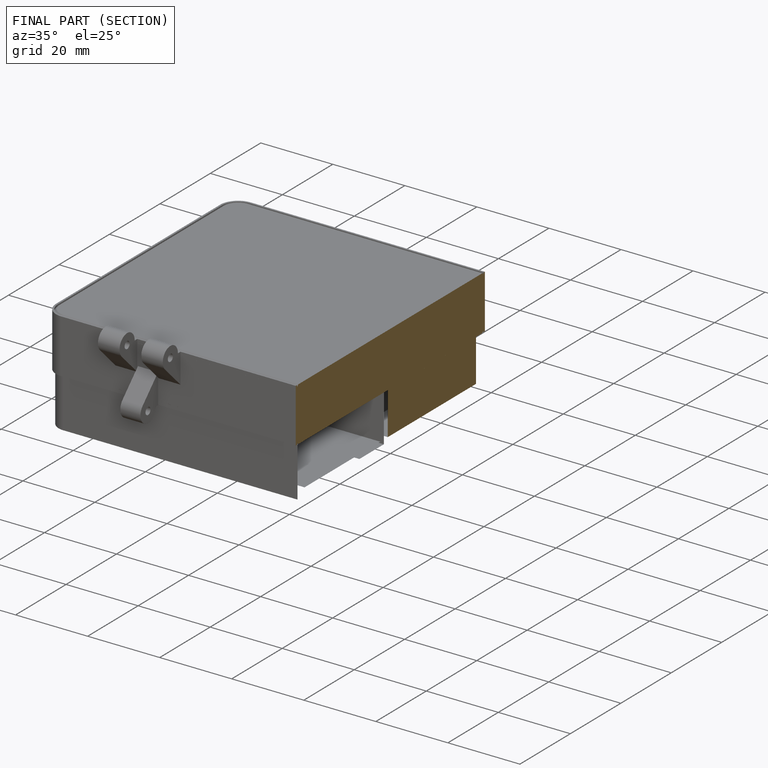
[diagram: finished part — half-section view (interior)]
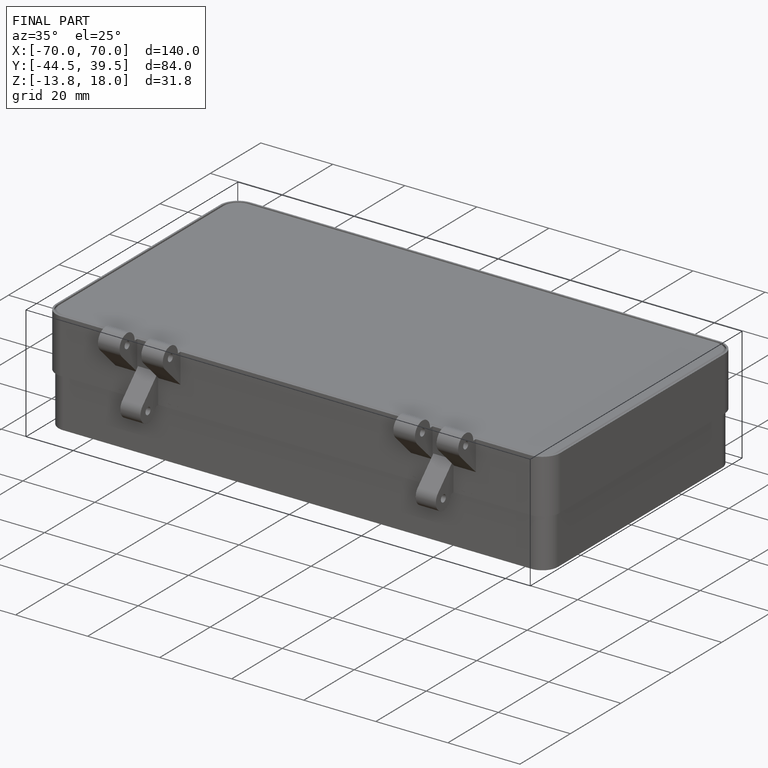
[diagram: finished part — iso view with bounding-box wireframe]
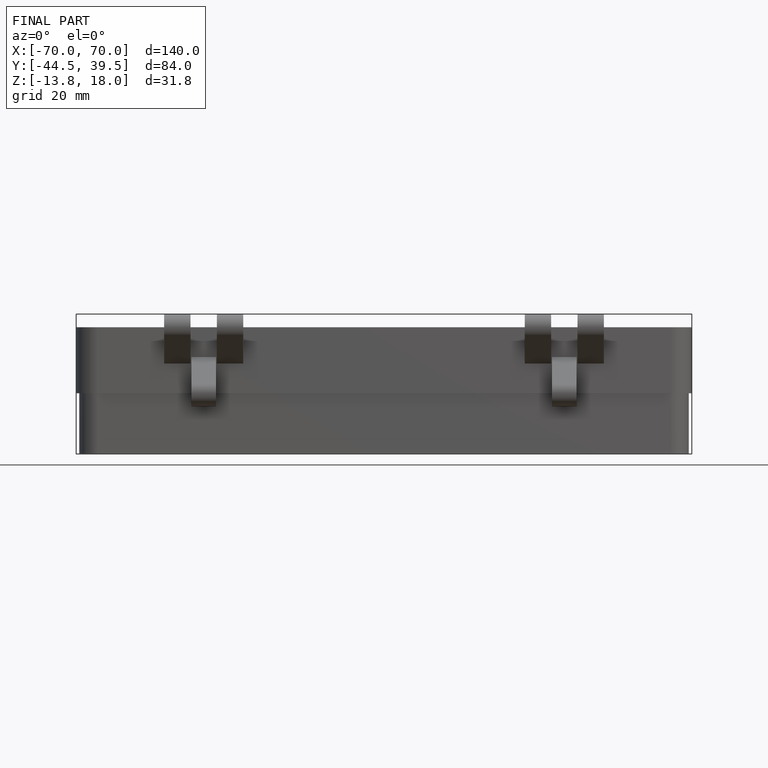
[diagram: finished part — front view with bounding-box wireframe]
